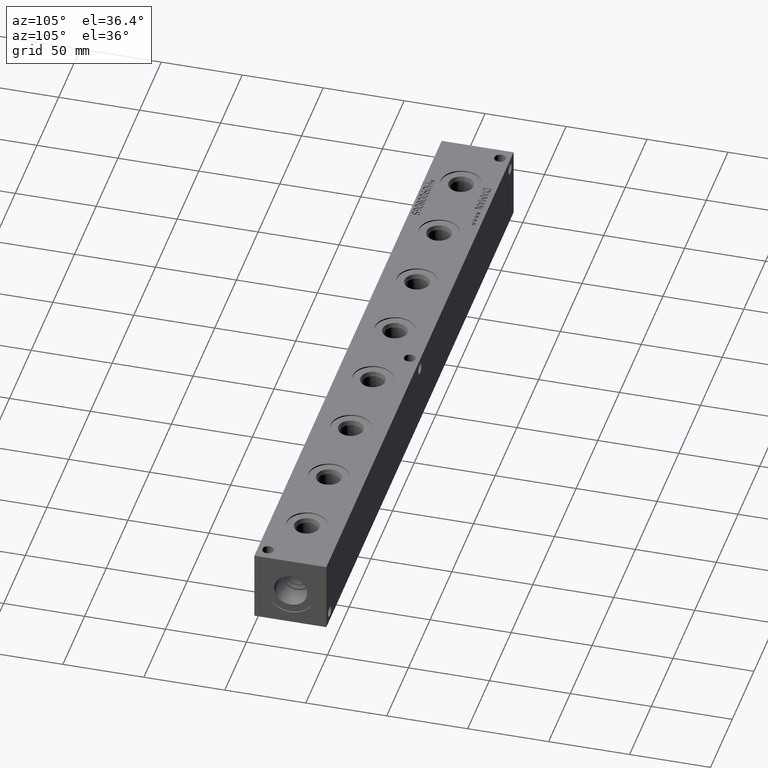
[diagram: clean part render]
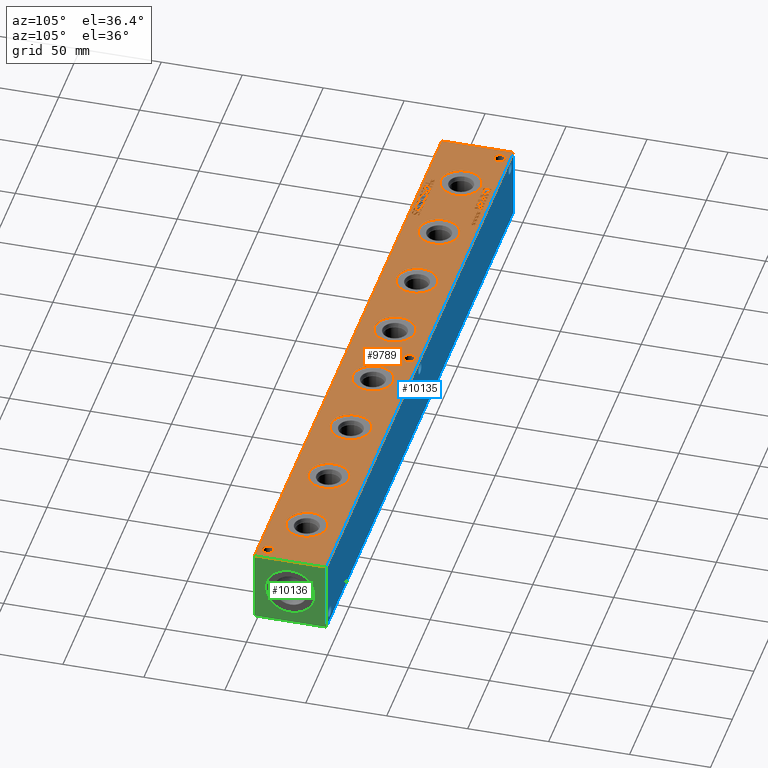
[diagram: same view with three faces highlighted in distinct colors, each labeled with its STEP entity id]
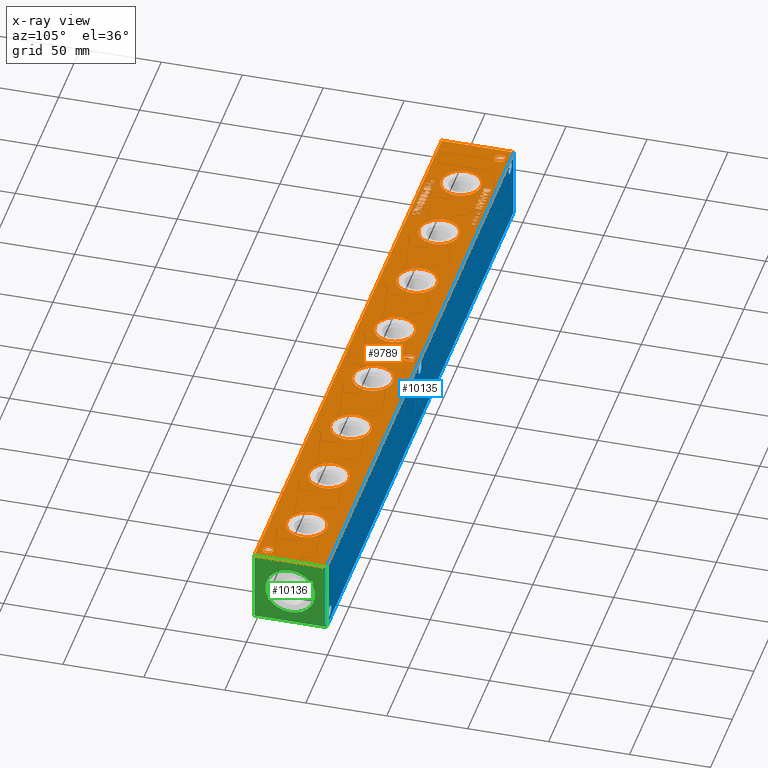
[diagram: x-ray of the same camera — body ghosted, the three highlighted faces saturated]
A machine part, auxiliary view with three faces highlighted in distinct colors.
The next image is the same camera in x-ray (body ghosted, the three faces saturated) — at least one of them is partly hidden behind the body in this view.
Their STEP definitions:

[orange] entity #9789 — the highlighted planar face has unit normal (0, 0, 1).
#184=CIRCLE('',#10205,12.5095);
#185=CIRCLE('',#10206,12.5095);
#186=CIRCLE('',#10207,12.5095);
#187=CIRCLE('',#10208,12.5095);
#188=CIRCLE('',#10209,12.5095);
#189=CIRCLE('',#10210,12.5095);
#190=CIRCLE('',#10211,12.5095);
#191=CIRCLE('',#10212,12.5095);
#192=CIRCLE('',#10213,12.5095);
#193=CIRCLE('',#10214,12.5095);
#194=CIRCLE('',#10215,12.5095);
#195=CIRCLE('',#10216,12.5095);
#196=CIRCLE('',#10217,12.5095);
#197=CIRCLE('',#10218,12.5095);
#198=CIRCLE('',#10219,12.5095);
#199=CIRCLE('',#10220,12.5095);
#200=CIRCLE('',#10221,3.5687);
#201=CIRCLE('',#10222,3.5687);
#202=CIRCLE('',#10223,3.5687);
#203=CIRCLE('',#10224,3.5687);
#204=CIRCLE('',#10225,3.5687);
#205=CIRCLE('',#10226,3.5687);
#530=FACE_BOUND('',#1555,.T.);
#531=FACE_BOUND('',#1556,.T.);
#532=FACE_BOUND('',#1557,.T.);
#533=FACE_BOUND('',#1558,.T.);
#534=FACE_BOUND('',#1559,.T.);
#535=FACE_BOUND('',#1560,.T.);
#536=FACE_BOUND('',#1561,.T.);
#537=FACE_BOUND('',#1562,.T.);
#538=FACE_BOUND('',#1563,.T.);
#539=FACE_BOUND('',#1564,.T.);
#540=FACE_BOUND('',#1565,.T.);
#541=FACE_BOUND('',#1566,.T.);
#542=FACE_BOUND('',#1567,.T.);
#543=FACE_BOUND('',#1568,.T.);
#544=FACE_BOUND('',#1569,.T.);
#545=FACE_BOUND('',#1570,.T.);
#546=FACE_BOUND('',#1571,.T.);
#547=FACE_BOUND('',#1572,.T.);
#548=FACE_BOUND('',#1573,.T.);
#549=FACE_BOUND('',#1574,.T.);
#550=FACE_BOUND('',#1575,.T.);
#551=FACE_BOUND('',#1576,.T.);
#552=FACE_BOUND('',#1577,.T.);
#553=FACE_BOUND('',#1578,.T.);
#554=FACE_BOUND('',#1579,.T.);
#555=FACE_BOUND('',#1580,.T.);
#556=FACE_BOUND('',#1581,.T.);
#557=FACE_BOUND('',#1582,.T.);
#558=FACE_BOUND('',#1583,.T.);
#559=FACE_BOUND('',#1584,.T.);
#668=PLANE('',#10204);
#1024=FACE_OUTER_BOUND('',#1554,.T.);
#1554=EDGE_LOOP('',(#7094,#7095,#7096,#7097));
#1555=EDGE_LOOP('',(#7098,#7099,#7100,#7101,#7102,#7103,#7104,#7105,#7106,
#7107,#7108));
#1556=EDGE_LOOP('',(#7109,#7110,#7111,#7112));
#1557=EDGE_LOOP('',(#7113,#7114,#7115,#7116));
#1558=EDGE_LOOP('',(#7117,#7118,#7119,#7120,#7121,#7122,#7123,#7124,#7125,
#7126,#7127,#7128,#7129,#7130));
#1559=EDGE_LOOP('',(#7131,#7132,#7133,#7134));
#1560=EDGE_LOOP('',(#7135,#7136,#7137,#7138,#7139,#7140,#7141,#7142,#7143,
#7144,#7145,#7146,#7147,#7148,#7149,#7150,#7151,#7152));
#1561=EDGE_LOOP('',(#7153,#7154,#7155,#7156,#7157,#7158,#7159,#7160,#7161,
#7162,#7163,#7164));
#1562=EDGE_LOOP('',(#7165,#7166,#7167,#7168));
#1563=EDGE_LOOP('',(#7169,#7170,#7171,#7172,#7173,#7174,#7175,#7176,#7177,
#7178,#7179,#7180,#7181,#7182));
#1564=EDGE_LOOP('',(#7183,#7184,#7185,#7186,#7187,#7188,#7189,#7190,#7191,
#7192,#7193,#7194,#7195,#7196,#7197,#7198,#7199,#7200,#7201,#7202));
#1565=EDGE_LOOP('',(#7203,#7204));
#1566=EDGE_LOOP('',(#7205,#7206));
#1567=EDGE_LOOP('',(#7207,#7208));
#1568=EDGE_LOOP('',(#7209,#7210));
#1569=EDGE_LOOP('',(#7211,#7212));
#1570=EDGE_LOOP('',(#7213,#7214));
#1571=EDGE_LOOP('',(#7215,#7216));
#1572=EDGE_LOOP('',(#7217,#7218));
#1573=EDGE_LOOP('',(#7219,#7220));
#1574=EDGE_LOOP('',(#7221,#7222));
#1575=EDGE_LOOP('',(#7223,#7224));
#1576=EDGE_LOOP('',(#7225,#7226,#7227,#7228,#7229,#7230,#7231,#7232,#7233,
#7234,#7235,#7236,#7237,#7238,#7239,#7240,#7241,#7242));
#1577=EDGE_LOOP('',(#7243,#7244,#7245,#7246,#7247,#7248,#7249,#7250,#7251,
#7252,#7253,#7254,#7255,#7256,#7257,#7258,#7259,#7260));
#1578=EDGE_LOOP('',(#7261,#7262,#7263,#7264,#7265,#7266,#7267,#7268,#7269,
#7270));
#1579=EDGE_LOOP('',(#7271,#7272,#7273,#7274,#7275,#7276,#7277,#7278));
#1580=EDGE_LOOP('',(#7279,#7280,#7281,#7282,#7283,#7284,#7285));
#1581=EDGE_LOOP('',(#7286,#7287,#7288,#7289,#7290,#7291,#7292,#7293));
#1582=EDGE_LOOP('',(#7294,#7295,#7296,#7297,#7298,#7299,#7300,#7301,#7302,
#7303,#7304,#7305,#7306));
#1583=EDGE_LOOP('',(#7307,#7308,#7309,#7310,#7311,#7312,#7313,#7314,#7315,
#7316,#7317,#7318,#7319,#7320,#7321,#7322,#7323,#7324));
#1584=EDGE_LOOP('',(#7325,#7326,#7327,#7328,#7329,#7330,#7331,#7332,#7333,
#7334,#7335,#7336,#7337,#7338,#7339,#7340,#7341,#7342));
#2006=LINE('',#13391,#2778);
#2013=LINE('',#13473,#2785);
#2055=LINE('',#14223,#2827);
#2058=LINE('',#14229,#2830);
#2079=LINE('',#14596,#2851);
#2083=LINE('',#14604,#2855);
#2086=LINE('',#14610,#2858);
#2089=LINE('',#14616,#2861);
#2092=LINE('',#14622,#2864);
#2095=LINE('',#14628,#2867);
#2098=LINE('',#14634,#2870);
#2101=LINE('',#14640,#2873);
#2104=LINE('',#14646,#2876);
#2107=LINE('',#14652,#2879);
#2110=LINE('',#14658,#2882);
#2113=LINE('',#14664,#2885);
#2116=LINE('',#14670,#2888);
#2119=LINE('',#14676,#2891);
#2122=LINE('',#14682,#2894);
#2125=LINE('',#14688,#2897);
#2128=LINE('',#14694,#2900);
#2131=LINE('',#14699,#2903);
#2133=LINE('',#14705,#2905);
#2137=LINE('',#14713,#2909);
#2140=LINE('',#14719,#2912);
#2143=LINE('',#14725,#2915);
#2146=LINE('',#14731,#2918);
#2149=LINE('',#14737,#2921);
#2152=LINE('',#14743,#2924);
#2155=LINE('',#14749,#2927);
#2158=LINE('',#14755,#2930);
#2161=LINE('',#14761,#2933);
#2164=LINE('',#14767,#2936);
#2167=LINE('',#14772,#2939);
#2194=LINE('',#15237,#2966);
#2197=LINE('',#15243,#2969);
#2214=LINE('',#15516,#2986);
#2217=LINE('',#15522,#2989);
#2228=LINE('',#15680,#3000);
#2231=LINE('',#15686,#3003);
#2234=LINE('',#15710,#3006);
#2235=LINE('',#15712,#3007);
#2236=LINE('',#15714,#3008);
#2237=LINE('',#15715,#3009);
#2238=LINE('',#15762,#3010);
#2239=LINE('',#15764,#3011);
#2240=LINE('',#15766,#3012);
#2241=LINE('',#15768,#3013);
#2242=LINE('',#15770,#3014);
#2243=LINE('',#15772,#3015);
#2244=LINE('',#15774,#3016);
#2245=LINE('',#15776,#3017);
#2246=LINE('',#15778,#3018);
#2247=LINE('',#15780,#3019);
#2248=LINE('',#15782,#3020);
#2249=LINE('',#15784,#3021);
#2250=LINE('',#15786,#3022);
#2251=LINE('',#15788,#3023);
#2252=LINE('',#15790,#3024);
#2253=LINE('',#15792,#3025);
#2254=LINE('',#15794,#3026);
#2255=LINE('',#15795,#3027);
#2256=LINE('',#15798,#3028);
#2257=LINE('',#15800,#3029);
#2258=LINE('',#15802,#3030);
#2259=LINE('',#15804,#3031);
#2260=LINE('',#15806,#3032);
#2261=LINE('',#15808,#3033);
#2262=LINE('',#15810,#3034);
#2263=LINE('',#15812,#3035);
#2264=LINE('',#15814,#3036);
#2265=LINE('',#15816,#3037);
#2266=LINE('',#15818,#3038);
#2267=LINE('',#15820,#3039);
#2268=LINE('',#15822,#3040);
#2269=LINE('',#15824,#3041);
#2270=LINE('',#15826,#3042);
#2271=LINE('',#15828,#3043);
#2272=LINE('',#15830,#3044);
#2273=LINE('',#15831,#3045);
#2274=LINE('',#15834,#3046);
#2275=LINE('',#15836,#3047);
#2276=LINE('',#15838,#3048);
#2277=LINE('',#15840,#3049);
#2278=LINE('',#15842,#3050);
#2279=LINE('',#15844,#3051);
#2280=LINE('',#15846,#3052);
#2281=LINE('',#15848,#3053);
#2282=LINE('',#15850,#3054);
#2283=LINE('',#15851,#3055);
#2284=LINE('',#15854,#3056);
#2285=LINE('',#15856,#3057);
#2286=LINE('',#15858,#3058);
#2287=LINE('',#15860,#3059);
#2288=LINE('',#15862,#3060);
#2289=LINE('',#15864,#3061);
#2290=LINE('',#15866,#3062);
#2291=LINE('',#15867,#3063);
#2292=LINE('',#15885,#3064);
#2293=LINE('',#15887,#3065);
#2294=LINE('',#15889,#3066);
#2295=LINE('',#15896,#3067);
#2296=LINE('',#15898,#3068);
#2297=LINE('',#15900,#3069);
#2298=LINE('',#15902,#3070);
#2299=LINE('',#15904,#3071);
#2300=LINE('',#15906,#3072);
#2301=LINE('',#15908,#3073);
#2302=LINE('',#15909,#3074);
#2303=LINE('',#15912,#3075);
#2304=LINE('',#15914,#3076);
#2305=LINE('',#15916,#3077);
#2306=LINE('',#15918,#3078);
#2307=LINE('',#15920,#3079);
#2308=LINE('',#15922,#3080);
#2309=LINE('',#15924,#3081);
#2310=LINE('',#15926,#3082);
#2311=LINE('',#15928,#3083);
#2312=LINE('',#15930,#3084);
#2313=LINE('',#15932,#3085);
#2314=LINE('',#15934,#3086);
#2315=LINE('',#15935,#3087);
#2316=LINE('',#15938,#3088);
#2317=LINE('',#15940,#3089);
#2318=LINE('',#15942,#3090);
#2319=LINE('',#15944,#3091);
#2320=LINE('',#15946,#3092);
#2321=LINE('',#15948,#3093);
#2322=LINE('',#15950,#3094);
#2323=LINE('',#15952,#3095);
#2324=LINE('',#15954,#3096);
#2325=LINE('',#15956,#3097);
#2326=LINE('',#15958,#3098);
#2327=LINE('',#15960,#3099);
#2328=LINE('',#15962,#3100);
#2329=LINE('',#15964,#3101);
#2330=LINE('',#15966,#3102);
#2331=LINE('',#15968,#3103);
#2332=LINE('',#15970,#3104);
#2333=LINE('',#15971,#3105);
#2334=LINE('',#15974,#3106);
#2335=LINE('',#15976,#3107);
#2336=LINE('',#15978,#3108);
#2337=LINE('',#15980,#3109);
#2338=LINE('',#15982,#3110);
#2339=LINE('',#15984,#3111);
#2340=LINE('',#15986,#3112);
#2341=LINE('',#15988,#3113);
#2342=LINE('',#15990,#3114);
#2343=LINE('',#15992,#3115);
#2344=LINE('',#15994,#3116);
#2345=LINE('',#15996,#3117);
#2346=LINE('',#15998,#3118);
#2347=LINE('',#16000,#3119);
#2348=LINE('',#16002,#3120);
#2349=LINE('',#16004,#3121);
#2350=LINE('',#16006,#3122);
#2351=LINE('',#16007,#3123);
#2778=VECTOR('',#10914,10.);
#2785=VECTOR('',#10923,10.);
#2827=VECTOR('',#10973,10.);
#2830=VECTOR('',#10978,10.);
#2851=VECTOR('',#11005,10.);
#2855=VECTOR('',#11011,10.);
#2858=VECTOR('',#11016,10.);
#2861=VECTOR('',#11021,10.);
#2864=VECTOR('',#11026,10.);
#2867=VECTOR('',#11031,10.);
#2870=VECTOR('',#11036,10.);
#2873=VECTOR('',#11041,10.);
#2876=VECTOR('',#11046,10.);
#2879=VECTOR('',#11051,10.);
#2882=VECTOR('',#11056,10.);
#2885=VECTOR('',#11061,10.);
#2888=VECTOR('',#11066,10.);
#2891=VECTOR('',#11071,10.);
#2894=VECTOR('',#11076,10.);
#2897=VECTOR('',#11081,10.);
#2900=VECTOR('',#11086,10.);
#2903=VECTOR('',#11091,10.);
#2905=VECTOR('',#11097,10.);
#2909=VECTOR('',#11103,10.);
#2912=VECTOR('',#11108,10.);
#2915=VECTOR('',#11113,10.);
#2918=VECTOR('',#11118,10.);
#2921=VECTOR('',#11123,10.);
#2924=VECTOR('',#11128,10.);
#2927=VECTOR('',#11133,10.);
#2930=VECTOR('',#11138,10.);
#2933=VECTOR('',#11143,10.);
#2936=VECTOR('',#11148,10.);
#2939=VECTOR('',#11153,10.);
#2966=VECTOR('',#11186,10.);
#2969=VECTOR('',#11191,10.);
#2986=VECTOR('',#11212,10.);
#2989=VECTOR('',#11217,10.);
#3000=VECTOR('',#11230,10.);
#3003=VECTOR('',#11235,10.);
#3006=VECTOR('',#11242,10.);
#3007=VECTOR('',#11243,10.);
#3008=VECTOR('',#11244,10.);
#3009=VECTOR('',#11245,10.);
#3010=VECTOR('',#11290,10.);
#3011=VECTOR('',#11291,10.);
#3012=VECTOR('',#11292,10.);
#3013=VECTOR('',#11293,10.);
#3014=VECTOR('',#11294,10.);
#3015=VECTOR('',#11295,10.);
#3016=VECTOR('',#11296,10.);
#3017=VECTOR('',#11297,10.);
#3018=VECTOR('',#11298,10.);
#3019=VECTOR('',#11299,10.);
#3020=VECTOR('',#11300,10.);
#3021=VECTOR('',#11301,10.);
#3022=VECTOR('',#11302,10.);
#3023=VECTOR('',#11303,10.);
#3024=VECTOR('',#11304,10.);
#3025=VECTOR('',#11305,10.);
#3026=VECTOR('',#11306,10.);
#3027=VECTOR('',#11307,10.);
#3028=VECTOR('',#11308,10.);
#3029=VECTOR('',#11309,10.);
#3030=VECTOR('',#11310,10.);
#3031=VECTOR('',#11311,10.);
#3032=VECTOR('',#11312,10.);
#3033=VECTOR('',#11313,10.);
#3034=VECTOR('',#11314,10.);
#3035=VECTOR('',#11315,10.);
#3036=VECTOR('',#11316,10.);
#3037=VECTOR('',#11317,10.);
#3038=VECTOR('',#11318,10.);
#3039=VECTOR('',#11319,10.);
#3040=VECTOR('',#11320,10.);
#3041=VECTOR('',#11321,10.);
#3042=VECTOR('',#11322,10.);
#3043=VECTOR('',#11323,10.);
#3044=VECTOR('',#11324,10.);
#3045=VECTOR('',#11325,10.);
#3046=VECTOR('',#11326,10.);
#3047=VECTOR('',#11327,10.);
#3048=VECTOR('',#11328,10.);
#3049=VECTOR('',#11329,10.);
#3050=VECTOR('',#11330,10.);
#3051=VECTOR('',#11331,10.);
#3052=VECTOR('',#11332,10.);
#3053=VECTOR('',#11333,10.);
#3054=VECTOR('',#11334,10.);
#3055=VECTOR('',#11335,10.);
#3056=VECTOR('',#11336,10.);
#3057=VECTOR('',#11337,10.);
#3058=VECTOR('',#11338,10.);
#3059=VECTOR('',#11339,10.);
#3060=VECTOR('',#11340,10.);
#3061=VECTOR('',#11341,10.);
#3062=VECTOR('',#11342,10.);
#3063=VECTOR('',#11343,10.);
#3064=VECTOR('',#11344,10.);
#3065=VECTOR('',#11345,10.);
#3066=VECTOR('',#11346,10.);
#3067=VECTOR('',#11347,10.);
#3068=VECTOR('',#11348,10.);
#3069=VECTOR('',#11349,10.);
#3070=VECTOR('',#11350,10.);
#3071=VECTOR('',#11351,10.);
#3072=VECTOR('',#11352,10.);
#3073=VECTOR('',#11353,10.);
#3074=VECTOR('',#11354,10.);
#3075=VECTOR('',#11355,10.);
#3076=VECTOR('',#11356,10.);
#3077=VECTOR('',#11357,10.);
#3078=VECTOR('',#11358,10.);
#3079=VECTOR('',#11359,10.);
#3080=VECTOR('',#11360,10.);
#3081=VECTOR('',#11361,10.);
#3082=VECTOR('',#11362,10.);
#3083=VECTOR('',#11363,10.);
#3084=VECTOR('',#11364,10.);
#3085=VECTOR('',#11365,10.);
#3086=VECTOR('',#11366,10.);
#3087=VECTOR('',#11367,10.);
#3088=VECTOR('',#11368,10.);
#3089=VECTOR('',#11369,10.);
#3090=VECTOR('',#11370,10.);
#3091=VECTOR('',#11371,10.);
#3092=VECTOR('',#11372,10.);
#3093=VECTOR('',#11373,10.);
#3094=VECTOR('',#11374,10.);
#3095=VECTOR('',#11375,10.);
#3096=VECTOR('',#11376,10.);
#3097=VECTOR('',#11377,10.);
#3098=VECTOR('',#11378,10.);
#3099=VECTOR('',#11379,10.);
#3100=VECTOR('',#11380,10.);
#3101=VECTOR('',#11381,10.);
#3102=VECTOR('',#11382,10.);
#3103=VECTOR('',#11383,10.);
#3104=VECTOR('',#11384,10.);
#3105=VECTOR('',#11385,10.);
#3106=VECTOR('',#11386,10.);
#3107=VECTOR('',#11387,10.);
#3108=VECTOR('',#11388,10.);
#3109=VECTOR('',#11389,10.);
#3110=VECTOR('',#11390,10.);
#3111=VECTOR('',#11391,10.);
#3112=VECTOR('',#11392,10.);
#3113=VECTOR('',#11393,10.);
#3114=VECTOR('',#11394,10.);
#3115=VECTOR('',#11395,10.);
#3116=VECTOR('',#11396,10.);
#3117=VECTOR('',#11397,10.);
#3118=VECTOR('',#11398,10.);
#3119=VECTOR('',#11399,10.);
#3120=VECTOR('',#11400,10.);
#3121=VECTOR('',#11401,10.);
#3122=VECTOR('',#11402,10.);
#3123=VECTOR('',#11403,10.);
#3557=B_SPLINE_CURVE_WITH_KNOTS('',2,(#13358,#13359,#13360,#13361),
 .UNSPECIFIED.,.F.,.F.,(3,1,3),(0.,1.,2.),.UNSPECIFIED.);
#3559=B_SPLINE_CURVE_WITH_KNOTS('',2,(#13379,#13380,#13381,#13382),
 .UNSPECIFIED.,.F.,.F.,(3,1,3),(0.,1.,2.),.UNSPECIFIED.);
#3561=B_SPLINE_CURVE_WITH_KNOTS('',2,(#13404,#13405,#13406,#13407),
 .UNSPECIFIED.,.F.,.F.,(3,1,3),(0.,1.,2.),.UNSPECIFIED.);
#3563=B_SPLINE_CURVE_WITH_KNOTS('',2,(#13423,#13424,#13425,#13426),
 .UNSPECIFIED.,.F.,.F.,(3,1,3),(0.,1.,2.),.UNSPECIFIED.);
#3565=B_SPLINE_CURVE_WITH_KNOTS('',2,(#13442,#13443,#13444,#13445),
 .UNSPECIFIED.,.F.,.F.,(3,1,3),(0.,1.,2.),.UNSPECIFIED.);
#3567=B_SPLINE_CURVE_WITH_KNOTS('',2,(#13461,#13462,#13463,#13464),
 .UNSPECIFIED.,.F.,.F.,(3,1,3),(0.,1.,2.),.UNSPECIFIED.);
#3569=B_SPLINE_CURVE_WITH_KNOTS('',2,(#13486,#13487,#13488,#13489),
 .UNSPECIFIED.,.F.,.F.,(3,1,3),(0.,1.,2.),.UNSPECIFIED.);
#3571=B_SPLINE_CURVE_WITH_KNOTS('',2,(#13505,#13506,#13507,#13508),
 .UNSPECIFIED.,.F.,.F.,(3,1,3),(0.,1.,2.),.UNSPECIFIED.);
#3573=B_SPLINE_CURVE_WITH_KNOTS('',2,(#13523,#13524,#13525,#13526),
 .UNSPECIFIED.,.F.,.F.,(3,1,3),(0.,1.,2.),.UNSPECIFIED.);
#3591=B_SPLINE_CURVE_WITH_KNOTS('',2,(#13694,#13695,#13696,#13697),
 .UNSPECIFIED.,.F.,.F.,(3,1,3),(0.,1.,2.),.UNSPECIFIED.);
#3593=B_SPLINE_CURVE_WITH_KNOTS('',2,(#13715,#13716,#13717,#13718),
 .UNSPECIFIED.,.F.,.F.,(3,1,3),(0.,1.,2.),.UNSPECIFIED.);
#3595=B_SPLINE_CURVE_WITH_KNOTS('',2,(#13734,#13735,#13736,#13737),
 .UNSPECIFIED.,.F.,.F.,(3,1,3),(0.,1.,2.),.UNSPECIFIED.);
#3597=B_SPLINE_CURVE_WITH_KNOTS('',2,(#13752,#13753,#13754,#13755),
 .UNSPECIFIED.,.F.,.F.,(3,1,3),(0.,1.,2.),.UNSPECIFIED.);
#3615=B_SPLINE_CURVE_WITH_KNOTS('',2,(#13923,#13924,#13925,#13926),
 .UNSPECIFIED.,.F.,.F.,(3,1,3),(0.,1.,2.),.UNSPECIFIED.);
#3617=B_SPLINE_CURVE_WITH_KNOTS('',2,(#13944,#13945,#13946,#13947),
 .UNSPECIFIED.,.F.,.F.,(3,1,3),(0.,1.,2.),.UNSPECIFIED.);
#3619=B_SPLINE_CURVE_WITH_KNOTS('',2,(#13963,#13964,#13965,#13966),
 .UNSPECIFIED.,.F.,.F.,(3,1,3),(0.,1.,2.),.UNSPECIFIED.);
#3621=B_SPLINE_CURVE_WITH_KNOTS('',2,(#13981,#13982,#13983,#13984),
 .UNSPECIFIED.,.F.,.F.,(3,1,3),(0.,1.,2.),.UNSPECIFIED.);
#3637=B_SPLINE_CURVE_WITH_KNOTS('',2,(#14133,#14134,#14135,#14136),
 .UNSPECIFIED.,.F.,.F.,(3,1,3),(0.,1.,2.),.UNSPECIFIED.);
#3639=B_SPLINE_CURVE_WITH_KNOTS('',2,(#14154,#14155,#14156,#14157),
 .UNSPECIFIED.,.F.,.F.,(3,1,3),(0.,1.,2.),.UNSPECIFIED.);
#3641=B_SPLINE_CURVE_WITH_KNOTS('',2,(#14173,#14174,#14175,#14176),
 .UNSPECIFIED.,.F.,.F.,(3,1,3),(0.,1.,2.),.UNSPECIFIED.);
#3643=B_SPLINE_CURVE_WITH_KNOTS('',2,(#14192,#14193,#14194,#14195),
 .UNSPECIFIED.,.F.,.F.,(3,1,3),(0.,1.,2.),.UNSPECIFIED.);
#3645=B_SPLINE_CURVE_WITH_KNOTS('',2,(#14211,#14212,#14213,#14214),
 .UNSPECIFIED.,.F.,.F.,(3,1,3),(0.,1.,2.),.UNSPECIFIED.);
#3647=B_SPLINE_CURVE_WITH_KNOTS('',2,(#14242,#14243,#14244,#14245),
 .UNSPECIFIED.,.F.,.F.,(3,1,3),(0.,1.,2.),.UNSPECIFIED.);
#3649=B_SPLINE_CURVE_WITH_KNOTS('',2,(#14261,#14262,#14263,#14264),
 .UNSPECIFIED.,.F.,.F.,(3,1,3),(0.,1.,2.),.UNSPECIFIED.);
#3651=B_SPLINE_CURVE_WITH_KNOTS('',2,(#14280,#14281,#14282,#14283),
 .UNSPECIFIED.,.F.,.F.,(3,1,3),(0.,1.,2.),.UNSPECIFIED.);
#3653=B_SPLINE_CURVE_WITH_KNOTS('',2,(#14299,#14300,#14301,#14302),
 .UNSPECIFIED.,.F.,.F.,(3,1,3),(0.,1.,2.),.UNSPECIFIED.);
#3655=B_SPLINE_CURVE_WITH_KNOTS('',2,(#14318,#14319,#14320,#14321),
 .UNSPECIFIED.,.F.,.F.,(3,1,3),(0.,1.,2.),.UNSPECIFIED.);
#3657=B_SPLINE_CURVE_WITH_KNOTS('',2,(#14337,#14338,#14339,#14340),
 .UNSPECIFIED.,.F.,.F.,(3,1,3),(0.,1.,2.),.UNSPECIFIED.);
#3659=B_SPLINE_CURVE_WITH_KNOTS('',2,(#14355,#14356,#14357,#14358),
 .UNSPECIFIED.,.F.,.F.,(3,1,3),(0.,1.,2.),.UNSPECIFIED.);
#3677=B_SPLINE_CURVE_WITH_KNOTS('',2,(#14526,#14527,#14528,#14529),
 .UNSPECIFIED.,.F.,.F.,(3,1,3),(0.,1.,2.),.UNSPECIFIED.);
#3679=B_SPLINE_CURVE_WITH_KNOTS('',2,(#14547,#14548,#14549,#14550),
 .UNSPECIFIED.,.F.,.F.,(3,1,3),(0.,1.,2.),.UNSPECIFIED.);
#3681=B_SPLINE_CURVE_WITH_KNOTS('',2,(#14566,#14567,#14568,#14569),
 .UNSPECIFIED.,.F.,.F.,(3,1,3),(0.,1.,2.),.UNSPECIFIED.);
#3683=B_SPLINE_CURVE_WITH_KNOTS('',2,(#14584,#14585,#14586,#14587),
 .UNSPECIFIED.,.F.,.F.,(3,1,3),(0.,1.,2.),.UNSPECIFIED.);
#3701=B_SPLINE_CURVE_WITH_KNOTS('',2,(#14937,#14938,#14939,#14940),
 .UNSPECIFIED.,.F.,.F.,(3,1,3),(0.,1.,2.),.UNSPECIFIED.);
#3703=B_SPLINE_CURVE_WITH_KNOTS('',2,(#14958,#14959,#14960,#14961),
 .UNSPECIFIED.,.F.,.F.,(3,1,3),(0.,1.,2.),.UNSPECIFIED.);
#3705=B_SPLINE_CURVE_WITH_KNOTS('',2,(#14977,#14978,#14979,#14980),
 .UNSPECIFIED.,.F.,.F.,(3,1,3),(0.,1.,2.),.UNSPECIFIED.);
#3707=B_SPLINE_CURVE_WITH_KNOTS('',2,(#14995,#14996,#14997,#14998),
 .UNSPECIFIED.,.F.,.F.,(3,1,3),(0.,1.,2.),.UNSPECIFIED.);
#3723=B_SPLINE_CURVE_WITH_KNOTS('',2,(#15147,#15148,#15149,#15150),
 .UNSPECIFIED.,.F.,.F.,(3,1,3),(0.,1.,2.),.UNSPECIFIED.);
#3725=B_SPLINE_CURVE_WITH_KNOTS('',2,(#15168,#15169,#15170,#15171),
 .UNSPECIFIED.,.F.,.F.,(3,1,3),(0.,1.,2.),.UNSPECIFIED.);
#3727=B_SPLINE_CURVE_WITH_KNOTS('',2,(#15187,#15188,#15189,#15190),
 .UNSPECIFIED.,.F.,.F.,(3,1,3),(0.,1.,2.),.UNSPECIFIED.);
#3729=B_SPLINE_CURVE_WITH_KNOTS('',2,(#15206,#15207,#15208,#15209),
 .UNSPECIFIED.,.F.,.F.,(3,1,3),(0.,1.,2.),.UNSPECIFIED.);
#3731=B_SPLINE_CURVE_WITH_KNOTS('',2,(#15225,#15226,#15227,#15228),
 .UNSPECIFIED.,.F.,.F.,(3,1,3),(0.,1.,2.),.UNSPECIFIED.);
#3733=B_SPLINE_CURVE_WITH_KNOTS('',2,(#15256,#15257,#15258,#15259),
 .UNSPECIFIED.,.F.,.F.,(3,1,3),(0.,1.,2.),.UNSPECIFIED.);
#3735=B_SPLINE_CURVE_WITH_KNOTS('',2,(#15275,#15276,#15277,#15278),
 .UNSPECIFIED.,.F.,.F.,(3,1,3),(0.,1.,2.),.UNSPECIFIED.);
#3737=B_SPLINE_CURVE_WITH_KNOTS('',2,(#15294,#15295,#15296,#15297),
 .UNSPECIFIED.,.F.,.F.,(3,1,3),(0.,1.,2.),.UNSPECIFIED.);
#3739=B_SPLINE_CURVE_WITH_KNOTS('',2,(#15313,#15314,#15315,#15316),
 .UNSPECIFIED.,.F.,.F.,(3,1,3),(0.,1.,2.),.UNSPECIFIED.);
#3741=B_SPLINE_CURVE_WITH_KNOTS('',2,(#15332,#15333,#15334,#15335),
 .UNSPECIFIED.,.F.,.F.,(3,1,3),(0.,1.,2.),.UNSPECIFIED.);
#3743=B_SPLINE_CURVE_WITH_KNOTS('',2,(#15351,#15352,#15353,#15354),
 .UNSPECIFIED.,.F.,.F.,(3,1,3),(0.,1.,2.),.UNSPECIFIED.);
#3745=B_SPLINE_CURVE_WITH_KNOTS('',2,(#15369,#15370,#15371,#15372),
 .UNSPECIFIED.,.F.,.F.,(3,1,3),(0.,1.,2.),.UNSPECIFIED.);
#3747=B_SPLINE_CURVE_WITH_KNOTS('',2,(#15388,#15389,#15390,#15391),
 .UNSPECIFIED.,.F.,.F.,(3,1,3),(0.,1.,2.),.UNSPECIFIED.);
#3749=B_SPLINE_CURVE_WITH_KNOTS('',2,(#15409,#15410,#15411,#15412),
 .UNSPECIFIED.,.F.,.F.,(3,1,3),(0.,1.,2.),.UNSPECIFIED.);
#3751=B_SPLINE_CURVE_WITH_KNOTS('',2,(#15428,#15429,#15430,#15431),
 .UNSPECIFIED.,.F.,.F.,(3,1,3),(0.,1.,2.),.UNSPECIFIED.);
#3753=B_SPLINE_CURVE_WITH_KNOTS('',2,(#15447,#15448,#15449,#15450),
 .UNSPECIFIED.,.F.,.F.,(3,1,3),(0.,1.,2.),.UNSPECIFIED.);
#3755=B_SPLINE_CURVE_WITH_KNOTS('',2,(#15466,#15467,#15468,#15469),
 .UNSPECIFIED.,.F.,.F.,(3,1,3),(0.,1.,2.),.UNSPECIFIED.);
#3757=B_SPLINE_CURVE_WITH_KNOTS('',2,(#15485,#15486,#15487,#15488),
 .UNSPECIFIED.,.F.,.F.,(3,1,3),(0.,1.,2.),.UNSPECIFIED.);
#3759=B_SPLINE_CURVE_WITH_KNOTS('',2,(#15504,#15505,#15506,#15507),
 .UNSPECIFIED.,.F.,.F.,(3,1,3),(0.,1.,2.),.UNSPECIFIED.);
#3761=B_SPLINE_CURVE_WITH_KNOTS('',2,(#15535,#15536,#15537,#15538),
 .UNSPECIFIED.,.F.,.F.,(3,1,3),(0.,1.,2.),.UNSPECIFIED.);
#3763=B_SPLINE_CURVE_WITH_KNOTS('',2,(#15554,#15555,#15556,#15557),
 .UNSPECIFIED.,.F.,.F.,(3,1,3),(0.,1.,2.),.UNSPECIFIED.);
#3765=B_SPLINE_CURVE_WITH_KNOTS('',2,(#15573,#15574,#15575,#15576),
 .UNSPECIFIED.,.F.,.F.,(3,1,3),(0.,1.,2.),.UNSPECIFIED.);
#3767=B_SPLINE_CURVE_WITH_KNOTS('',2,(#15592,#15593,#15594,#15595),
 .UNSPECIFIED.,.F.,.F.,(3,1,3),(0.,1.,2.),.UNSPECIFIED.);
#3769=B_SPLINE_CURVE_WITH_KNOTS('',2,(#15611,#15612,#15613,#15614),
 .UNSPECIFIED.,.F.,.F.,(3,1,3),(0.,1.,2.),.UNSPECIFIED.);
#3771=B_SPLINE_CURVE_WITH_KNOTS('',2,(#15630,#15631,#15632,#15633),
 .UNSPECIFIED.,.F.,.F.,(3,1,3),(0.,1.,2.),.UNSPECIFIED.);
#3773=B_SPLINE_CURVE_WITH_KNOTS('',2,(#15649,#15650,#15651,#15652),
 .UNSPECIFIED.,.F.,.F.,(3,1,3),(0.,1.,2.),.UNSPECIFIED.);
#3775=B_SPLINE_CURVE_WITH_KNOTS('',2,(#15668,#15669,#15670,#15671),
 .UNSPECIFIED.,.F.,.F.,(3,1,3),(0.,1.,2.),.UNSPECIFIED.);
#3777=B_SPLINE_CURVE_WITH_KNOTS('',2,(#15698,#15699,#15700,#15701),
 .UNSPECIFIED.,.F.,.F.,(3,1,3),(0.,1.,2.),.UNSPECIFIED.);
#3779=B_SPLINE_CURVE_WITH_KNOTS('',2,(#15870,#15871,#15872,#15873),
 .UNSPECIFIED.,.F.,.F.,(3,1,3),(0.,1.,2.),.UNSPECIFIED.);
#3780=B_SPLINE_CURVE_WITH_KNOTS('',2,(#15875,#15876,#15877,#15878),
 .UNSPECIFIED.,.F.,.F.,(3,1,3),(0.,1.,2.),.UNSPECIFIED.);
#3781=B_SPLINE_CURVE_WITH_KNOTS('',2,(#15880,#15881,#15882,#15883),
 .UNSPECIFIED.,.F.,.F.,(3,1,3),(0.,1.,2.),.UNSPECIFIED.);
#3782=B_SPLINE_CURVE_WITH_KNOTS('',2,(#15890,#15891,#15892,#15893),
 .UNSPECIFIED.,.F.,.F.,(3,1,3),(0.,1.,2.),.UNSPECIFIED.);
#3879=VERTEX_POINT('',#13356);
#3880=VERTEX_POINT('',#13357);
#3883=VERTEX_POINT('',#13378);
#3885=VERTEX_POINT('',#13390);
#3887=VERTEX_POINT('',#13403);
#3889=VERTEX_POINT('',#13422);
#3891=VERTEX_POINT('',#13441);
#3893=VERTEX_POINT('',#13460);
#3895=VERTEX_POINT('',#13472);
#3897=VERTEX_POINT('',#13485);
#3899=VERTEX_POINT('',#13504);
#3917=VERTEX_POINT('',#13692);
#3918=VERTEX_POINT('',#13693);
#3921=VERTEX_POINT('',#13714);
#3923=VERTEX_POINT('',#13733);
#3941=VERTEX_POINT('',#13921);
#3942=VERTEX_POINT('',#13922);
#3945=VERTEX_POINT('',#13943);
#3947=VERTEX_POINT('',#13962);
#3963=VERTEX_POINT('',#14131);
#3964=VERTEX_POINT('',#14132);
#3967=VERTEX_POINT('',#14153);
#3969=VERTEX_POINT('',#14172);
#3971=VERTEX_POINT('',#14191);
#3973=VERTEX_POINT('',#14210);
#3975=VERTEX_POINT('',#14222);
#3977=VERTEX_POINT('',#14228);
#3979=VERTEX_POINT('',#14241);
#3981=VERTEX_POINT('',#14260);
#3983=VERTEX_POINT('',#14279);
#3985=VERTEX_POINT('',#14298);
#3987=VERTEX_POINT('',#14317);
#3989=VERTEX_POINT('',#14336);
#4007=VERTEX_POINT('',#14524);
#4008=VERTEX_POINT('',#14525);
#4011=VERTEX_POINT('',#14546);
#4013=VERTEX_POINT('',#14565);
#4015=VERTEX_POINT('',#14594);
#4016=VERTEX_POINT('',#14595);
#4019=VERTEX_POINT('',#14603);
#4021=VERTEX_POINT('',#14609);
#4023=VERTEX_POINT('',#14615);
#4025=VERTEX_POINT('',#14621);
#4027=VERTEX_POINT('',#14627);
#4029=VERTEX_POINT('',#14633);
#4031=VERTEX_POINT('',#14639);
#4033=VERTEX_POINT('',#14645);
#4035=VERTEX_POINT('',#14651);
#4037=VERTEX_POINT('',#14657);
#4039=VERTEX_POINT('',#14663);
#4041=VERTEX_POINT('',#14669);
#4043=VERTEX_POINT('',#14675);
#4045=VERTEX_POINT('',#14681);
#4047=VERTEX_POINT('',#14687);
#4049=VERTEX_POINT('',#14693);
#4051=VERTEX_POINT('',#14703);
#4052=VERTEX_POINT('',#14704);
#4055=VERTEX_POINT('',#14712);
#4057=VERTEX_POINT('',#14718);
#4059=VERTEX_POINT('',#14724);
#4061=VERTEX_POINT('',#14730);
#4063=VERTEX_POINT('',#14736);
#4065=VERTEX_POINT('',#14742);
#4067=VERTEX_POINT('',#14748);
#4069=VERTEX_POINT('',#14754);
#4071=VERTEX_POINT('',#14760);
#4073=VERTEX_POINT('',#14766);
#4091=VERTEX_POINT('',#14935);
#4092=VERTEX_POINT('',#14936);
#4095=VERTEX_POINT('',#14957);
#4097=VERTEX_POINT('',#14976);
#4113=VERTEX_POINT('',#15145);
#4114=VERTEX_POINT('',#15146);
#4117=VERTEX_POINT('',#15167);
#4119=VERTEX_POINT('',#15186);
#4121=VERTEX_POINT('',#15205);
#4123=VERTEX_POINT('',#15224);
#4125=VERTEX_POINT('',#15236);
#4127=VERTEX_POINT('',#15242);
#4129=VERTEX_POINT('',#15255);
#4131=VERTEX_POINT('',#15274);
#4133=VERTEX_POINT('',#15293);
#4135=VERTEX_POINT('',#15312);
#4137=VERTEX_POINT('',#15331);
#4139=VERTEX_POINT('',#15350);
#4141=VERTEX_POINT('',#15386);
#4142=VERTEX_POINT('',#15387);
#4145=VERTEX_POINT('',#15408);
#4147=VERTEX_POINT('',#15427);
#4149=VERTEX_POINT('',#15446);
#4151=VERTEX_POINT('',#15465);
#4153=VERTEX_POINT('',#15484);
#4155=VERTEX_POINT('',#15503);
#4157=VERTEX_POINT('',#15515);
#4159=VERTEX_POINT('',#15521);
#4161=VERTEX_POINT('',#15534);
#4163=VERTEX_POINT('',#15553);
#4165=VERTEX_POINT('',#15572);
#4167=VERTEX_POINT('',#15591);
#4169=VERTEX_POINT('',#15610);
#4171=VERTEX_POINT('',#15629);
#4173=VERTEX_POINT('',#15648);
#4175=VERTEX_POINT('',#15667);
#4177=VERTEX_POINT('',#15679);
#4179=VERTEX_POINT('',#15685);
#4181=VERTEX_POINT('',#15708);
#4182=VERTEX_POINT('',#15709);
#4183=VERTEX_POINT('',#15711);
#4184=VERTEX_POINT('',#15713);
#4185=VERTEX_POINT('',#15716);
#4186=VERTEX_POINT('',#15717);
#4187=VERTEX_POINT('',#15720);
#4188=VERTEX_POINT('',#15721);
#4189=VERTEX_POINT('',#15724);
#4190=VERTEX_POINT('',#15725);
#4191=VERTEX_POINT('',#15728);
#4192=VERTEX_POINT('',#15729);
#4193=VERTEX_POINT('',#15732);
#4194=VERTEX_POINT('',#15733);
#4195=VERTEX_POINT('',#15736);
#4196=VERTEX_POINT('',#15737);
#4197=VERTEX_POINT('',#15740);
#4198=VERTEX_POINT('',#15741);
#4199=VERTEX_POINT('',#15744);
#4200=VERTEX_POINT('',#15745);
#4201=VERTEX_POINT('',#15748);
#4202=VERTEX_POINT('',#15749);
#4203=VERTEX_POINT('',#15752);
#4204=VERTEX_POINT('',#15753);
#4205=VERTEX_POINT('',#15756);
#4206=VERTEX_POINT('',#15757);
#4207=VERTEX_POINT('',#15760);
#4208=VERTEX_POINT('',#15761);
#4209=VERTEX_POINT('',#15763);
#4210=VERTEX_POINT('',#15765);
#4211=VERTEX_POINT('',#15767);
#4212=VERTEX_POINT('',#15769);
#4213=VERTEX_POINT('',#15771);
#4214=VERTEX_POINT('',#15773);
#4215=VERTEX_POINT('',#15775);
#4216=VERTEX_POINT('',#15777);
#4217=VERTEX_POINT('',#15779);
#4218=VERTEX_POINT('',#15781);
#4219=VERTEX_POINT('',#15783);
#4220=VERTEX_POINT('',#15785);
#4221=VERTEX_POINT('',#15787);
#4222=VERTEX_POINT('',#15789);
#4223=VERTEX_POINT('',#15791);
#4224=VERTEX_POINT('',#15793);
#4225=VERTEX_POINT('',#15796);
#4226=VERTEX_POINT('',#15797);
#4227=VERTEX_POINT('',#15799);
#4228=VERTEX_POINT('',#15801);
#4229=VERTEX_POINT('',#15803);
#4230=VERTEX_POINT('',#15805);
#4231=VERTEX_POINT('',#15807);
#4232=VERTEX_POINT('',#15809);
#4233=VERTEX_POINT('',#15811);
#4234=VERTEX_POINT('',#15813);
#4235=VERTEX_POINT('',#15815);
#4236=VERTEX_POINT('',#15817);
#4237=VERTEX_POINT('',#15819);
#4238=VERTEX_POINT('',#15821);
#4239=VERTEX_POINT('',#15823);
#4240=VERTEX_POINT('',#15825);
#4241=VERTEX_POINT('',#15827);
#4242=VERTEX_POINT('',#15829);
#4243=VERTEX_POINT('',#15832);
#4244=VERTEX_POINT('',#15833);
#4245=VERTEX_POINT('',#15835);
#4246=VERTEX_POINT('',#15837);
#4247=VERTEX_POINT('',#15839);
#4248=VERTEX_POINT('',#15841);
#4249=VERTEX_POINT('',#15843);
#4250=VERTEX_POINT('',#15845);
#4251=VERTEX_POINT('',#15847);
#4252=VERTEX_POINT('',#15849);
#4253=VERTEX_POINT('',#15852);
#4254=VERTEX_POINT('',#15853);
#4255=VERTEX_POINT('',#15855);
#4256=VERTEX_POINT('',#15857);
#4257=VERTEX_POINT('',#15859);
#4258=VERTEX_POINT('',#15861);
#4259=VERTEX_POINT('',#15863);
#4260=VERTEX_POINT('',#15865);
#4261=VERTEX_POINT('',#15868);
#4262=VERTEX_POINT('',#15869);
#4263=VERTEX_POINT('',#15874);
#4264=VERTEX_POINT('',#15879);
#4265=VERTEX_POINT('',#15884);
#4266=VERTEX_POINT('',#15886);
#4267=VERTEX_POINT('',#15888);
#4268=VERTEX_POINT('',#15894);
#4269=VERTEX_POINT('',#15895);
#4270=VERTEX_POINT('',#15897);
#4271=VERTEX_POINT('',#15899);
#4272=VERTEX_POINT('',#15901);
#4273=VERTEX_POINT('',#15903);
#4274=VERTEX_POINT('',#15905);
#4275=VERTEX_POINT('',#15907);
#4276=VERTEX_POINT('',#15910);
#4277=VERTEX_POINT('',#15911);
#4278=VERTEX_POINT('',#15913);
#4279=VERTEX_POINT('',#15915);
#4280=VERTEX_POINT('',#15917);
#4281=VERTEX_POINT('',#15919);
#4282=VERTEX_POINT('',#15921);
#4283=VERTEX_POINT('',#15923);
#4284=VERTEX_POINT('',#15925);
#4285=VERTEX_POINT('',#15927);
#4286=VERTEX_POINT('',#15929);
#4287=VERTEX_POINT('',#15931);
#4288=VERTEX_POINT('',#15933);
#4289=VERTEX_POINT('',#15936);
#4290=VERTEX_POINT('',#15937);
#4291=VERTEX_POINT('',#15939);
#4292=VERTEX_POINT('',#15941);
#4293=VERTEX_POINT('',#15943);
#4294=VERTEX_POINT('',#15945);
#4295=VERTEX_POINT('',#15947);
#4296=VERTEX_POINT('',#15949);
#4297=VERTEX_POINT('',#15951);
#4298=VERTEX_POINT('',#15953);
#4299=VERTEX_POINT('',#15955);
#4300=VERTEX_POINT('',#15957);
#4301=VERTEX_POINT('',#15959);
#4302=VERTEX_POINT('',#15961);
#4303=VERTEX_POINT('',#15963);
#4304=VERTEX_POINT('',#15965);
#4305=VERTEX_POINT('',#15967);
#4306=VERTEX_POINT('',#15969);
#4307=VERTEX_POINT('',#15972);
#4308=VERTEX_POINT('',#15973);
#4309=VERTEX_POINT('',#15975);
#4310=VERTEX_POINT('',#15977);
#4311=VERTEX_POINT('',#15979);
#4312=VERTEX_POINT('',#15981);
#4313=VERTEX_POINT('',#15983);
#4314=VERTEX_POINT('',#15985);
#4315=VERTEX_POINT('',#15987);
#4316=VERTEX_POINT('',#15989);
#4317=VERTEX_POINT('',#15991);
#4318=VERTEX_POINT('',#15993);
#4319=VERTEX_POINT('',#15995);
#4320=VERTEX_POINT('',#15997);
#4321=VERTEX_POINT('',#15999);
#4322=VERTEX_POINT('',#16001);
#4323=VERTEX_POINT('',#16003);
#4324=VERTEX_POINT('',#16005);
#4875=EDGE_CURVE('',#3879,#3880,#3557,.T.);
#4879=EDGE_CURVE('',#3883,#3879,#3559,.T.);
#4882=EDGE_CURVE('',#3885,#3883,#2006,.T.);
#4885=EDGE_CURVE('',#3887,#3885,#3561,.T.);
#4888=EDGE_CURVE('',#3889,#3887,#3563,.T.);
#4891=EDGE_CURVE('',#3891,#3889,#3565,.T.);
#4894=EDGE_CURVE('',#3893,#3891,#3567,.T.);
#4897=EDGE_CURVE('',#3895,#3893,#2013,.T.);
#4900=EDGE_CURVE('',#3897,#3895,#3569,.T.);
#4903=EDGE_CURVE('',#3899,#3897,#3571,.T.);
#4906=EDGE_CURVE('',#3880,#3899,#3573,.T.);
#4932=EDGE_CURVE('',#3917,#3918,#3591,.T.);
#4936=EDGE_CURVE('',#3921,#3917,#3593,.T.);
#4939=EDGE_CURVE('',#3923,#3921,#3595,.T.);
#4942=EDGE_CURVE('',#3918,#3923,#3597,.T.);
#4968=EDGE_CURVE('',#3941,#3942,#3615,.T.);
#4972=EDGE_CURVE('',#3945,#3941,#3617,.T.);
#4975=EDGE_CURVE('',#3947,#3945,#3619,.T.);
#4978=EDGE_CURVE('',#3942,#3947,#3621,.T.);
#5001=EDGE_CURVE('',#3963,#3964,#3637,.T.);
#5005=EDGE_CURVE('',#3967,#3963,#3639,.T.);
#5008=EDGE_CURVE('',#3969,#3967,#3641,.T.);
#5011=EDGE_CURVE('',#3971,#3969,#3643,.T.);
#5014=EDGE_CURVE('',#3973,#3971,#3645,.T.);
#5017=EDGE_CURVE('',#3975,#3973,#2055,.T.);
#5020=EDGE_CURVE('',#3977,#3975,#2058,.T.);
#5023=EDGE_CURVE('',#3979,#3977,#3647,.T.);
#5026=EDGE_CURVE('',#3981,#3979,#3649,.T.);
#5029=EDGE_CURVE('',#3983,#3981,#3651,.T.);
#5032=EDGE_CURVE('',#3985,#3983,#3653,.T.);
#5035=EDGE_CURVE('',#3987,#3985,#3655,.T.);
#5038=EDGE_CURVE('',#3989,#3987,#3657,.T.);
#5041=EDGE_CURVE('',#3964,#3989,#3659,.T.);
#5067=EDGE_CURVE('',#4007,#4008,#3677,.T.);
#5071=EDGE_CURVE('',#4011,#4007,#3679,.T.);
#5074=EDGE_CURVE('',#4013,#4011,#3681,.T.);
#5077=EDGE_CURVE('',#4008,#4013,#3683,.T.);
#5079=EDGE_CURVE('',#4015,#4016,#2079,.T.);
#5083=EDGE_CURVE('',#4019,#4015,#2083,.T.);
#5086=EDGE_CURVE('',#4021,#4019,#2086,.T.);
#5089=EDGE_CURVE('',#4023,#4021,#2089,.T.);
#5092=EDGE_CURVE('',#4025,#4023,#2092,.T.);
#5095=EDGE_CURVE('',#4027,#4025,#2095,.T.);
#5098=EDGE_CURVE('',#4029,#4027,#2098,.T.);
#5101=EDGE_CURVE('',#4031,#4029,#2101,.T.);
#5104=EDGE_CURVE('',#4033,#4031,#2104,.T.);
#5107=EDGE_CURVE('',#4035,#4033,#2107,.T.);
#5110=EDGE_CURVE('',#4037,#4035,#2110,.T.);
#5113=EDGE_CURVE('',#4039,#4037,#2113,.T.);
#5116=EDGE_CURVE('',#4041,#4039,#2116,.T.);
#5119=EDGE_CURVE('',#4043,#4041,#2119,.T.);
#5122=EDGE_CURVE('',#4045,#4043,#2122,.T.);
#5125=EDGE_CURVE('',#4047,#4045,#2125,.T.);
#5128=EDGE_CURVE('',#4049,#4047,#2128,.T.);
#5131=EDGE_CURVE('',#4016,#4049,#2131,.T.);
#5133=EDGE_CURVE('',#4051,#4052,#2133,.T.);
#5137=EDGE_CURVE('',#4055,#4051,#2137,.T.);
#5140=EDGE_CURVE('',#4057,#4055,#2140,.T.);
#5143=EDGE_CURVE('',#4059,#4057,#2143,.T.);
#5146=EDGE_CURVE('',#4061,#4059,#2146,.T.);
#5149=EDGE_CURVE('',#4063,#4061,#2149,.T.);
#5152=EDGE_CURVE('',#4065,#4063,#2152,.T.);
#5155=EDGE_CURVE('',#4067,#4065,#2155,.T.);
#5158=EDGE_CURVE('',#4069,#4067,#2158,.T.);
#5161=EDGE_CURVE('',#4071,#4069,#2161,.T.);
#5164=EDGE_CURVE('',#4073,#4071,#2164,.T.);
#5167=EDGE_CURVE('',#4052,#4073,#2167,.T.);
#5193=EDGE_CURVE('',#4091,#4092,#3701,.T.);
#5197=EDGE_CURVE('',#4095,#4091,#3703,.T.);
#5200=EDGE_CURVE('',#4097,#4095,#3705,.T.);
#5203=EDGE_CURVE('',#4092,#4097,#3707,.T.);
#5226=EDGE_CURVE('',#4113,#4114,#3723,.T.);
#5230=EDGE_CURVE('',#4117,#4113,#3725,.T.);
#5233=EDGE_CURVE('',#4119,#4117,#3727,.T.);
#5236=EDGE_CURVE('',#4121,#4119,#3729,.T.);
#5239=EDGE_CURVE('',#4123,#4121,#3731,.T.);
#5242=EDGE_CURVE('',#4125,#4123,#2194,.T.);
#5245=EDGE_CURVE('',#4127,#4125,#2197,.T.);
#5248=EDGE_CURVE('',#4129,#4127,#3733,.T.);
#5251=EDGE_CURVE('',#4131,#4129,#3735,.T.);
#5254=EDGE_CURVE('',#4133,#4131,#3737,.T.);
#5257=EDGE_CURVE('',#4135,#4133,#3739,.T.);
#5260=EDGE_CURVE('',#4137,#4135,#3741,.T.);
#5263=EDGE_CURVE('',#4139,#4137,#3743,.T.);
#5266=EDGE_CURVE('',#4114,#4139,#3745,.T.);
#5268=EDGE_CURVE('',#4141,#4142,#3747,.T.);
#5272=EDGE_CURVE('',#4145,#4141,#3749,.T.);
#5275=EDGE_CURVE('',#4147,#4145,#3751,.T.);
#5278=EDGE_CURVE('',#4149,#4147,#3753,.T.);
#5281=EDGE_CURVE('',#4151,#4149,#3755,.T.);
#5284=EDGE_CURVE('',#4153,#4151,#3757,.T.);
#5287=EDGE_CURVE('',#4155,#4153,#3759,.T.);
#5290=EDGE_CURVE('',#4157,#4155,#2214,.T.);
#5293=EDGE_CURVE('',#4159,#4157,#2217,.T.);
#5296=EDGE_CURVE('',#4161,#4159,#3761,.T.);
#5299=EDGE_CURVE('',#4163,#4161,#3763,.T.);
#5302=EDGE_CURVE('',#4165,#4163,#3765,.T.);
#5305=EDGE_CURVE('',#4167,#4165,#3767,.T.);
#5308=EDGE_CURVE('',#4169,#4167,#3769,.T.);
#5311=EDGE_CURVE('',#4171,#4169,#3771,.T.);
#5314=EDGE_CURVE('',#4173,#4171,#3773,.T.);
#5317=EDGE_CURVE('',#4175,#4173,#3775,.T.);
#5320=EDGE_CURVE('',#4177,#4175,#2228,.T.);
#5323=EDGE_CURVE('',#4179,#4177,#2231,.T.);
#5326=EDGE_CURVE('',#4142,#4179,#3777,.T.);
#5328=EDGE_CURVE('',#4181,#4182,#2234,.T.);
#5329=EDGE_CURVE('',#4182,#4183,#2235,.T.);
#5330=EDGE_CURVE('',#4183,#4184,#2236,.T.);
#5331=EDGE_CURVE('',#4184,#4181,#2237,.T.);
#5332=EDGE_CURVE('',#4185,#4186,#184,.T.);
#5333=EDGE_CURVE('',#4186,#4185,#185,.T.);
#5334=EDGE_CURVE('',#4187,#4188,#186,.T.);
#5335=EDGE_CURVE('',#4188,#4187,#187,.T.);
#5336=EDGE_CURVE('',#4189,#4190,#188,.T.);
#5337=EDGE_CURVE('',#4190,#4189,#189,.T.);
#5338=EDGE_CURVE('',#4191,#4192,#190,.T.);
#5339=EDGE_CURVE('',#4192,#4191,#191,.T.);
#5340=EDGE_CURVE('',#4193,#4194,#192,.T.);
#5341=EDGE_CURVE('',#4194,#4193,#193,.T.);
#5342=EDGE_CURVE('',#4195,#4196,#194,.T.);
#5343=EDGE_CURVE('',#4196,#4195,#195,.T.);
#5344=EDGE_CURVE('',#4197,#4198,#196,.T.);
#5345=EDGE_CURVE('',#4198,#4197,#197,.T.);
#5346=EDGE_CURVE('',#4199,#4200,#198,.T.);
#5347=EDGE_CURVE('',#4200,#4199,#199,.T.);
#5348=EDGE_CURVE('',#4201,#4202,#200,.T.);
#5349=EDGE_CURVE('',#4202,#4201,#201,.T.);
#5350=EDGE_CURVE('',#4203,#4204,#202,.T.);
#5351=EDGE_CURVE('',#4204,#4203,#203,.T.);
#5352=EDGE_CURVE('',#4205,#4206,#204,.T.);
#5353=EDGE_CURVE('',#4206,#4205,#205,.T.);
#5354=EDGE_CURVE('',#4207,#4208,#2238,.T.);
#5355=EDGE_CURVE('',#4208,#4209,#2239,.T.);
#5356=EDGE_CURVE('',#4209,#4210,#2240,.T.);
#5357=EDGE_CURVE('',#4210,#4211,#2241,.T.);
#5358=EDGE_CURVE('',#4211,#4212,#2242,.T.);
#5359=EDGE_CURVE('',#4212,#4213,#2243,.T.);
#5360=EDGE_CURVE('',#4213,#4214,#2244,.T.);
#5361=EDGE_CURVE('',#4214,#4215,#2245,.T.);
#5362=EDGE_CURVE('',#4215,#4216,#2246,.T.);
#5363=EDGE_CURVE('',#4216,#4217,#2247,.T.);
#5364=EDGE_CURVE('',#4217,#4218,#2248,.T.);
#5365=EDGE_CURVE('',#4218,#4219,#2249,.T.);
#5366=EDGE_CURVE('',#4219,#4220,#2250,.T.);
#5367=EDGE_CURVE('',#4220,#4221,#2251,.T.);
#5368=EDGE_CURVE('',#4221,#4222,#2252,.T.);
#5369=EDGE_CURVE('',#4222,#4223,#2253,.T.);
#5370=EDGE_CURVE('',#4223,#4224,#2254,.T.);
#5371=EDGE_CURVE('',#4224,#4207,#2255,.T.);
#5372=EDGE_CURVE('',#4225,#4226,#2256,.T.);
#5373=EDGE_CURVE('',#4226,#4227,#2257,.T.);
#5374=EDGE_CURVE('',#4227,#4228,#2258,.T.);
#5375=EDGE_CURVE('',#4228,#4229,#2259,.T.);
#5376=EDGE_CURVE('',#4229,#4230,#2260,.T.);
#5377=EDGE_CURVE('',#4230,#4231,#2261,.T.);
#5378=EDGE_CURVE('',#4231,#4232,#2262,.T.);
#5379=EDGE_CURVE('',#4232,#4233,#2263,.T.);
#5380=EDGE_CURVE('',#4233,#4234,#2264,.T.);
#5381=EDGE_CURVE('',#4234,#4235,#2265,.T.);
#5382=EDGE_CURVE('',#4235,#4236,#2266,.T.);
#5383=EDGE_CURVE('',#4236,#4237,#2267,.T.);
#5384=EDGE_CURVE('',#4237,#4238,#2268,.T.);
#5385=EDGE_CURVE('',#4238,#4239,#2269,.T.);
#5386=EDGE_CURVE('',#4239,#4240,#2270,.T.);
#5387=EDGE_CURVE('',#4240,#4241,#2271,.T.);
#5388=EDGE_CURVE('',#4241,#4242,#2272,.T.);
#5389=EDGE_CURVE('',#4242,#4225,#2273,.T.);
#5390=EDGE_CURVE('',#4243,#4244,#2274,.T.);
#5391=EDGE_CURVE('',#4244,#4245,#2275,.T.);
#5392=EDGE_CURVE('',#4245,#4246,#2276,.T.);
#5393=EDGE_CURVE('',#4246,#4247,#2277,.T.);
#5394=EDGE_CURVE('',#4247,#4248,#2278,.T.);
#5395=EDGE_CURVE('',#4248,#4249,#2279,.T.);
#5396=EDGE_CURVE('',#4249,#4250,#2280,.T.);
#5397=EDGE_CURVE('',#4250,#4251,#2281,.T.);
#5398=EDGE_CURVE('',#4251,#4252,#2282,.T.);
#5399=EDGE_CURVE('',#4252,#4243,#2283,.T.);
#5400=EDGE_CURVE('',#4253,#4254,#2284,.T.);
#5401=EDGE_CURVE('',#4254,#4255,#2285,.T.);
#5402=EDGE_CURVE('',#4255,#4256,#2286,.T.);
#5403=EDGE_CURVE('',#4256,#4257,#2287,.T.);
#5404=EDGE_CURVE('',#4257,#4258,#2288,.T.);
#5405=EDGE_CURVE('',#4258,#4259,#2289,.T.);
#5406=EDGE_CURVE('',#4259,#4260,#2290,.T.);
#5407=EDGE_CURVE('',#4260,#4253,#2291,.T.);
#5408=EDGE_CURVE('',#4261,#4262,#3779,.T.);
#5409=EDGE_CURVE('',#4262,#4263,#3780,.T.);
#5410=EDGE_CURVE('',#4263,#4264,#3781,.T.);
#5411=EDGE_CURVE('',#4264,#4265,#2292,.T.);
#5412=EDGE_CURVE('',#4265,#4266,#2293,.T.);
#5413=EDGE_CURVE('',#4266,#4267,#2294,.T.);
#5414=EDGE_CURVE('',#4267,#4261,#3782,.T.);
#5415=EDGE_CURVE('',#4268,#4269,#2295,.T.);
#5416=EDGE_CURVE('',#4269,#4270,#2296,.T.);
#5417=EDGE_CURVE('',#4270,#4271,#2297,.T.);
#5418=EDGE_CURVE('',#4271,#4272,#2298,.T.);
#5419=EDGE_CURVE('',#4272,#4273,#2299,.T.);
#5420=EDGE_CURVE('',#4273,#4274,#2300,.T.);
#5421=EDGE_CURVE('',#4274,#4275,#2301,.T.);
#5422=EDGE_CURVE('',#4275,#4268,#2302,.T.);
#5423=EDGE_CURVE('',#4276,#4277,#2303,.T.);
#5424=EDGE_CURVE('',#4277,#4278,#2304,.T.);
#5425=EDGE_CURVE('',#4278,#4279,#2305,.T.);
#5426=EDGE_CURVE('',#4279,#4280,#2306,.T.);
#5427=EDGE_CURVE('',#4280,#4281,#2307,.T.);
#5428=EDGE_CURVE('',#4281,#4282,#2308,.T.);
#5429=EDGE_CURVE('',#4282,#4283,#2309,.T.);
#5430=EDGE_CURVE('',#4283,#4284,#2310,.T.);
#5431=EDGE_CURVE('',#4284,#4285,#2311,.T.);
#5432=EDGE_CURVE('',#4285,#4286,#2312,.T.);
#5433=EDGE_CURVE('',#4286,#4287,#2313,.T.);
#5434=EDGE_CURVE('',#4287,#4288,#2314,.T.);
#5435=EDGE_CURVE('',#4288,#4276,#2315,.T.);
#5436=EDGE_CURVE('',#4289,#4290,#2316,.T.);
#5437=EDGE_CURVE('',#4290,#4291,#2317,.T.);
#5438=EDGE_CURVE('',#4291,#4292,#2318,.T.);
#5439=EDGE_CURVE('',#4292,#4293,#2319,.T.);
#5440=EDGE_CURVE('',#4293,#4294,#2320,.T.);
#5441=EDGE_CURVE('',#4294,#4295,#2321,.T.);
#5442=EDGE_CURVE('',#4295,#4296,#2322,.T.);
#5443=EDGE_CURVE('',#4296,#4297,#2323,.T.);
#5444=EDGE_CURVE('',#4297,#4298,#2324,.T.);
#5445=EDGE_CURVE('',#4298,#4299,#2325,.T.);
#5446=EDGE_CURVE('',#4299,#4300,#2326,.T.);
#5447=EDGE_CURVE('',#4300,#4301,#2327,.T.);
#5448=EDGE_CURVE('',#4301,#4302,#2328,.T.);
#5449=EDGE_CURVE('',#4302,#4303,#2329,.T.);
#5450=EDGE_CURVE('',#4303,#4304,#2330,.T.);
#5451=EDGE_CURVE('',#4304,#4305,#2331,.T.);
#5452=EDGE_CURVE('',#4305,#4306,#2332,.T.);
#5453=EDGE_CURVE('',#4306,#4289,#2333,.T.);
#5454=EDGE_CURVE('',#4307,#4308,#2334,.T.);
#5455=EDGE_CURVE('',#4308,#4309,#2335,.T.);
#5456=EDGE_CURVE('',#4309,#4310,#2336,.T.);
#5457=EDGE_CURVE('',#4310,#4311,#2337,.T.);
#5458=EDGE_CURVE('',#4311,#4312,#2338,.T.);
#5459=EDGE_CURVE('',#4312,#4313,#2339,.T.);
#5460=EDGE_CURVE('',#4313,#4314,#2340,.T.);
#5461=EDGE_CURVE('',#4314,#4315,#2341,.T.);
#5462=EDGE_CURVE('',#4315,#4316,#2342,.T.);
#5463=EDGE_CURVE('',#4316,#4317,#2343,.T.);
#5464=EDGE_CURVE('',#4317,#4318,#2344,.T.);
#5465=EDGE_CURVE('',#4318,#4319,#2345,.T.);
#5466=EDGE_CURVE('',#4319,#4320,#2346,.T.);
#5467=EDGE_CURVE('',#4320,#4321,#2347,.T.);
#5468=EDGE_CURVE('',#4321,#4322,#2348,.T.);
#5469=EDGE_CURVE('',#4322,#4323,#2349,.T.);
#5470=EDGE_CURVE('',#4323,#4324,#2350,.T.);
#5471=EDGE_CURVE('',#4324,#4307,#2351,.T.);
#7094=ORIENTED_EDGE('',*,*,#5328,.T.);
#7095=ORIENTED_EDGE('',*,*,#5329,.T.);
#7096=ORIENTED_EDGE('',*,*,#5330,.T.);
#7097=ORIENTED_EDGE('',*,*,#5331,.T.);
#7098=ORIENTED_EDGE('',*,*,#4875,.T.);
#7099=ORIENTED_EDGE('',*,*,#4906,.T.);
#7100=ORIENTED_EDGE('',*,*,#4903,.T.);
#7101=ORIENTED_EDGE('',*,*,#4900,.T.);
#7102=ORIENTED_EDGE('',*,*,#4897,.T.);
#7103=ORIENTED_EDGE('',*,*,#4894,.T.);
#7104=ORIENTED_EDGE('',*,*,#4891,.T.);
#7105=ORIENTED_EDGE('',*,*,#4888,.T.);
#7106=ORIENTED_EDGE('',*,*,#4885,.T.);
#7107=ORIENTED_EDGE('',*,*,#4882,.T.);
#7108=ORIENTED_EDGE('',*,*,#4879,.T.);
#7109=ORIENTED_EDGE('',*,*,#4932,.T.);
#7110=ORIENTED_EDGE('',*,*,#4942,.T.);
#7111=ORIENTED_EDGE('',*,*,#4939,.T.);
#7112=ORIENTED_EDGE('',*,*,#4936,.T.);
#7113=ORIENTED_EDGE('',*,*,#4968,.T.);
#7114=ORIENTED_EDGE('',*,*,#4978,.T.);
#7115=ORIENTED_EDGE('',*,*,#4975,.T.);
#7116=ORIENTED_EDGE('',*,*,#4972,.T.);
#7117=ORIENTED_EDGE('',*,*,#5001,.T.);
#7118=ORIENTED_EDGE('',*,*,#5041,.T.);
#7119=ORIENTED_EDGE('',*,*,#5038,.T.);
#7120=ORIENTED_EDGE('',*,*,#5035,.T.);
#7121=ORIENTED_EDGE('',*,*,#5032,.T.);
#7122=ORIENTED_EDGE('',*,*,#5029,.T.);
#7123=ORIENTED_EDGE('',*,*,#5026,.T.);
#7124=ORIENTED_EDGE('',*,*,#5023,.T.);
#7125=ORIENTED_EDGE('',*,*,#5020,.T.);
#7126=ORIENTED_EDGE('',*,*,#5017,.T.);
#7127=ORIENTED_EDGE('',*,*,#5014,.T.);
#7128=ORIENTED_EDGE('',*,*,#5011,.T.);
#7129=ORIENTED_EDGE('',*,*,#5008,.T.);
#7130=ORIENTED_EDGE('',*,*,#5005,.T.);
#7131=ORIENTED_EDGE('',*,*,#5067,.T.);
#7132=ORIENTED_EDGE('',*,*,#5077,.T.);
#7133=ORIENTED_EDGE('',*,*,#5074,.T.);
#7134=ORIENTED_EDGE('',*,*,#5071,.T.);
#7135=ORIENTED_EDGE('',*,*,#5079,.T.);
#7136=ORIENTED_EDGE('',*,*,#5131,.T.);
#7137=ORIENTED_EDGE('',*,*,#5128,.T.);
#7138=ORIENTED_EDGE('',*,*,#5125,.T.);
#7139=ORIENTED_EDGE('',*,*,#5122,.T.);
#7140=ORIENTED_EDGE('',*,*,#5119,.T.);
#7141=ORIENTED_EDGE('',*,*,#5116,.T.);
#7142=ORIENTED_EDGE('',*,*,#5113,.T.);
#7143=ORIENTED_EDGE('',*,*,#5110,.T.);
#7144=ORIENTED_EDGE('',*,*,#5107,.T.);
#7145=ORIENTED_EDGE('',*,*,#5104,.T.);
#7146=ORIENTED_EDGE('',*,*,#5101,.T.);
#7147=ORIENTED_EDGE('',*,*,#5098,.T.);
#7148=ORIENTED_EDGE('',*,*,#5095,.T.);
#7149=ORIENTED_EDGE('',*,*,#5092,.T.);
#7150=ORIENTED_EDGE('',*,*,#5089,.T.);
#7151=ORIENTED_EDGE('',*,*,#5086,.T.);
#7152=ORIENTED_EDGE('',*,*,#5083,.T.);
#7153=ORIENTED_EDGE('',*,*,#5133,.T.);
#7154=ORIENTED_EDGE('',*,*,#5167,.T.);
#7155=ORIENTED_EDGE('',*,*,#5164,.T.);
#7156=ORIENTED_EDGE('',*,*,#5161,.T.);
#7157=ORIENTED_EDGE('',*,*,#5158,.T.);
#7158=ORIENTED_EDGE('',*,*,#5155,.T.);
#7159=ORIENTED_EDGE('',*,*,#5152,.T.);
#7160=ORIENTED_EDGE('',*,*,#5149,.T.);
#7161=ORIENTED_EDGE('',*,*,#5146,.T.);
#7162=ORIENTED_EDGE('',*,*,#5143,.T.);
#7163=ORIENTED_EDGE('',*,*,#5140,.T.);
#7164=ORIENTED_EDGE('',*,*,#5137,.T.);
#7165=ORIENTED_EDGE('',*,*,#5193,.T.);
#7166=ORIENTED_EDGE('',*,*,#5203,.T.);
#7167=ORIENTED_EDGE('',*,*,#5200,.T.);
#7168=ORIENTED_EDGE('',*,*,#5197,.T.);
#7169=ORIENTED_EDGE('',*,*,#5226,.T.);
#7170=ORIENTED_EDGE('',*,*,#5266,.T.);
#7171=ORIENTED_EDGE('',*,*,#5263,.T.);
#7172=ORIENTED_EDGE('',*,*,#5260,.T.);
#7173=ORIENTED_EDGE('',*,*,#5257,.T.);
#7174=ORIENTED_EDGE('',*,*,#5254,.T.);
#7175=ORIENTED_EDGE('',*,*,#5251,.T.);
#7176=ORIENTED_EDGE('',*,*,#5248,.T.);
#7177=ORIENTED_EDGE('',*,*,#5245,.T.);
#7178=ORIENTED_EDGE('',*,*,#5242,.T.);
#7179=ORIENTED_EDGE('',*,*,#5239,.T.);
#7180=ORIENTED_EDGE('',*,*,#5236,.T.);
#7181=ORIENTED_EDGE('',*,*,#5233,.T.);
#7182=ORIENTED_EDGE('',*,*,#5230,.T.);
#7183=ORIENTED_EDGE('',*,*,#5268,.T.);
#7184=ORIENTED_EDGE('',*,*,#5326,.T.);
#7185=ORIENTED_EDGE('',*,*,#5323,.T.);
#7186=ORIENTED_EDGE('',*,*,#5320,.T.);
#7187=ORIENTED_EDGE('',*,*,#5317,.T.);
#7188=ORIENTED_EDGE('',*,*,#5314,.T.);
#7189=ORIENTED_EDGE('',*,*,#5311,.T.);
#7190=ORIENTED_EDGE('',*,*,#5308,.T.);
#7191=ORIENTED_EDGE('',*,*,#5305,.T.);
#7192=ORIENTED_EDGE('',*,*,#5302,.T.);
#7193=ORIENTED_EDGE('',*,*,#5299,.T.);
#7194=ORIENTED_EDGE('',*,*,#5296,.T.);
#7195=ORIENTED_EDGE('',*,*,#5293,.T.);
#7196=ORIENTED_EDGE('',*,*,#5290,.T.);
#7197=ORIENTED_EDGE('',*,*,#5287,.T.);
#7198=ORIENTED_EDGE('',*,*,#5284,.T.);
#7199=ORIENTED_EDGE('',*,*,#5281,.T.);
#7200=ORIENTED_EDGE('',*,*,#5278,.T.);
#7201=ORIENTED_EDGE('',*,*,#5275,.T.);
#7202=ORIENTED_EDGE('',*,*,#5272,.T.);
#7203=ORIENTED_EDGE('',*,*,#5332,.T.);
#7204=ORIENTED_EDGE('',*,*,#5333,.T.);
#7205=ORIENTED_EDGE('',*,*,#5334,.T.);
#7206=ORIENTED_EDGE('',*,*,#5335,.T.);
#7207=ORIENTED_EDGE('',*,*,#5336,.T.);
#7208=ORIENTED_EDGE('',*,*,#5337,.T.);
#7209=ORIENTED_EDGE('',*,*,#5338,.T.);
#7210=ORIENTED_EDGE('',*,*,#5339,.T.);
#7211=ORIENTED_EDGE('',*,*,#5340,.T.);
#7212=ORIENTED_EDGE('',*,*,#5341,.T.);
#7213=ORIENTED_EDGE('',*,*,#5342,.T.);
#7214=ORIENTED_EDGE('',*,*,#5343,.T.);
#7215=ORIENTED_EDGE('',*,*,#5344,.T.);
#7216=ORIENTED_EDGE('',*,*,#5345,.T.);
#7217=ORIENTED_EDGE('',*,*,#5346,.T.);
#7218=ORIENTED_EDGE('',*,*,#5347,.T.);
#7219=ORIENTED_EDGE('',*,*,#5348,.T.);
#7220=ORIENTED_EDGE('',*,*,#5349,.T.);
#7221=ORIENTED_EDGE('',*,*,#5350,.T.);
#7222=ORIENTED_EDGE('',*,*,#5351,.T.);
#7223=ORIENTED_EDGE('',*,*,#5352,.T.);
#7224=ORIENTED_EDGE('',*,*,#5353,.T.);
#7225=ORIENTED_EDGE('',*,*,#5354,.T.);
#7226=ORIENTED_EDGE('',*,*,#5355,.T.);
#7227=ORIENTED_EDGE('',*,*,#5356,.T.);
#7228=ORIENTED_EDGE('',*,*,#5357,.T.);
#7229=ORIENTED_EDGE('',*,*,#5358,.T.);
#7230=ORIENTED_EDGE('',*,*,#5359,.T.);
#7231=ORIENTED_EDGE('',*,*,#5360,.T.);
#7232=ORIENTED_EDGE('',*,*,#5361,.T.);
#7233=ORIENTED_EDGE('',*,*,#5362,.T.);
#7234=ORIENTED_EDGE('',*,*,#5363,.T.);
#7235=ORIENTED_EDGE('',*,*,#5364,.T.);
#7236=ORIENTED_EDGE('',*,*,#5365,.T.);
#7237=ORIENTED_EDGE('',*,*,#5366,.T.);
#7238=ORIENTED_EDGE('',*,*,#5367,.T.);
#7239=ORIENTED_EDGE('',*,*,#5368,.T.);
#7240=ORIENTED_EDGE('',*,*,#5369,.T.);
#7241=ORIENTED_EDGE('',*,*,#5370,.T.);
#7242=ORIENTED_EDGE('',*,*,#5371,.T.);
#7243=ORIENTED_EDGE('',*,*,#5372,.T.);
#7244=ORIENTED_EDGE('',*,*,#5373,.T.);
#7245=ORIENTED_EDGE('',*,*,#5374,.T.);
#7246=ORIENTED_EDGE('',*,*,#5375,.T.);
#7247=ORIENTED_EDGE('',*,*,#5376,.T.);
#7248=ORIENTED_EDGE('',*,*,#5377,.T.);
#7249=ORIENTED_EDGE('',*,*,#5378,.T.);
#7250=ORIENTED_EDGE('',*,*,#5379,.T.);
#7251=ORIENTED_EDGE('',*,*,#5380,.T.);
#7252=ORIENTED_EDGE('',*,*,#5381,.T.);
#7253=ORIENTED_EDGE('',*,*,#5382,.T.);
#7254=ORIENTED_EDGE('',*,*,#5383,.T.);
#7255=ORIENTED_EDGE('',*,*,#5384,.T.);
#7256=ORIENTED_EDGE('',*,*,#5385,.T.);
#7257=ORIENTED_EDGE('',*,*,#5386,.T.);
#7258=ORIENTED_EDGE('',*,*,#5387,.T.);
#7259=ORIENTED_EDGE('',*,*,#5388,.T.);
#7260=ORIENTED_EDGE('',*,*,#5389,.T.);
#7261=ORIENTED_EDGE('',*,*,#5390,.T.);
#7262=ORIENTED_EDGE('',*,*,#5391,.T.);
#7263=ORIENTED_EDGE('',*,*,#5392,.T.);
#7264=ORIENTED_EDGE('',*,*,#5393,.T.);
#7265=ORIENTED_EDGE('',*,*,#5394,.T.);
#7266=ORIENTED_EDGE('',*,*,#5395,.T.);
#7267=ORIENTED_EDGE('',*,*,#5396,.T.);
#7268=ORIENTED_EDGE('',*,*,#5397,.T.);
#7269=ORIENTED_EDGE('',*,*,#5398,.T.);
#7270=ORIENTED_EDGE('',*,*,#5399,.T.);
#7271=ORIENTED_EDGE('',*,*,#5400,.T.);
#7272=ORIENTED_EDGE('',*,*,#5401,.T.);
#7273=ORIENTED_EDGE('',*,*,#5402,.T.);
#7274=ORIENTED_EDGE('',*,*,#5403,.T.);
#7275=ORIENTED_EDGE('',*,*,#5404,.T.);
#7276=ORIENTED_EDGE('',*,*,#5405,.T.);
#7277=ORIENTED_EDGE('',*,*,#5406,.T.);
#7278=ORIENTED_EDGE('',*,*,#5407,.T.);
#7279=ORIENTED_EDGE('',*,*,#5408,.T.);
#7280=ORIENTED_EDGE('',*,*,#5409,.T.);
#7281=ORIENTED_EDGE('',*,*,#5410,.T.);
#7282=ORIENTED_EDGE('',*,*,#5411,.T.);
#7283=ORIENTED_EDGE('',*,*,#5412,.T.);
#7284=ORIENTED_EDGE('',*,*,#5413,.T.);
#7285=ORIENTED_EDGE('',*,*,#5414,.T.);
#7286=ORIENTED_EDGE('',*,*,#5415,.T.);
#7287=ORIENTED_EDGE('',*,*,#5416,.T.);
#7288=ORIENTED_EDGE('',*,*,#5417,.T.);
#7289=ORIENTED_EDGE('',*,*,#5418,.T.);
#7290=ORIENTED_EDGE('',*,*,#5419,.T.);
#7291=ORIENTED_EDGE('',*,*,#5420,.T.);
#7292=ORIENTED_EDGE('',*,*,#5421,.T.);
#7293=ORIENTED_EDGE('',*,*,#5422,.T.);
#7294=ORIENTED_EDGE('',*,*,#5423,.T.);
#7295=ORIENTED_EDGE('',*,*,#5424,.T.);
#7296=ORIENTED_EDGE('',*,*,#5425,.T.);
#7297=ORIENTED_EDGE('',*,*,#5426,.T.);
#7298=ORIENTED_EDGE('',*,*,#5427,.T.);
#7299=ORIENTED_EDGE('',*,*,#5428,.T.);
#7300=ORIENTED_EDGE('',*,*,#5429,.T.);
#7301=ORIENTED_EDGE('',*,*,#5430,.T.);
#7302=ORIENTED_EDGE('',*,*,#5431,.T.);
#7303=ORIENTED_EDGE('',*,*,#5432,.T.);
#7304=ORIENTED_EDGE('',*,*,#5433,.T.);
#7305=ORIENTED_EDGE('',*,*,#5434,.T.);
#7306=ORIENTED_EDGE('',*,*,#5435,.T.);
#7307=ORIENTED_EDGE('',*,*,#5436,.T.);
#7308=ORIENTED_EDGE('',*,*,#5437,.T.);
#7309=ORIENTED_EDGE('',*,*,#5438,.T.);
#7310=ORIENTED_EDGE('',*,*,#5439,.T.);
#7311=ORIENTED_EDGE('',*,*,#5440,.T.);
#7312=ORIENTED_EDGE('',*,*,#5441,.T.);
#7313=ORIENTED_EDGE('',*,*,#5442,.T.);
#7314=ORIENTED_EDGE('',*,*,#5443,.T.);
#7315=ORIENTED_EDGE('',*,*,#5444,.T.);
#7316=ORIENTED_EDGE('',*,*,#5445,.T.);
#7317=ORIENTED_EDGE('',*,*,#5446,.T.);
#7318=ORIENTED_EDGE('',*,*,#5447,.T.);
#7319=ORIENTED_EDGE('',*,*,#5448,.T.);
#7320=ORIENTED_EDGE('',*,*,#5449,.T.);
#7321=ORIENTED_EDGE('',*,*,#5450,.T.);
#7322=ORIENTED_EDGE('',*,*,#5451,.T.);
#7323=ORIENTED_EDGE('',*,*,#5452,.T.);
#7324=ORIENTED_EDGE('',*,*,#5453,.T.);
#7325=ORIENTED_EDGE('',*,*,#5454,.T.);
#7326=ORIENTED_EDGE('',*,*,#5455,.T.);
#7327=ORIENTED_EDGE('',*,*,#5456,.T.);
#7328=ORIENTED_EDGE('',*,*,#5457,.T.);
#7329=ORIENTED_EDGE('',*,*,#5458,.T.);
#7330=ORIENTED_EDGE('',*,*,#5459,.T.);
#7331=ORIENTED_EDGE('',*,*,#5460,.T.);
#7332=ORIENTED_EDGE('',*,*,#5461,.T.);
#7333=ORIENTED_EDGE('',*,*,#5462,.T.);
#7334=ORIENTED_EDGE('',*,*,#5463,.T.);
#7335=ORIENTED_EDGE('',*,*,#5464,.T.);
#7336=ORIENTED_EDGE('',*,*,#5465,.T.);
#7337=ORIENTED_EDGE('',*,*,#5466,.T.);
#7338=ORIENTED_EDGE('',*,*,#5467,.T.);
#7339=ORIENTED_EDGE('',*,*,#5468,.T.);
#7340=ORIENTED_EDGE('',*,*,#5469,.T.);
#7341=ORIENTED_EDGE('',*,*,#5470,.T.);
#7342=ORIENTED_EDGE('',*,*,#5471,.T.);
#9789=ADVANCED_FACE('',(#1024,#530,#531,#532,#533,#534,#535,#536,#537,#538,
#539,#540,#541,#542,#543,#544,#545,#546,#547,#548,#549,#550,#551,#552,#553,
#554,#555,#556,#557,#558,#559),#668,.T.);
#10204=AXIS2_PLACEMENT_3D('',#15707,#11240,#11241);
#10205=AXIS2_PLACEMENT_3D('',#15718,#11246,#11247);
#10206=AXIS2_PLACEMENT_3D('',#15719,#11248,#11249);
#10207=AXIS2_PLACEMENT_3D('',#15722,#11250,#11251);
#10208=AXIS2_PLACEMENT_3D('',#15723,#11252,#11253);
#10209=AXIS2_PLACEMENT_3D('',#15726,#11254,#11255);
#10210=AXIS2_PLACEMENT_3D('',#15727,#11256,#11257);
#10211=AXIS2_PLACEMENT_3D('',#15730,#11258,#11259);
#10212=AXIS2_PLACEMENT_3D('',#15731,#11260,#11261);
#10213=AXIS2_PLACEMENT_3D('',#15734,#11262,#11263);
#10214=AXIS2_PLACEMENT_3D('',#15735,#11264,#11265);
#10215=AXIS2_PLACEMENT_3D('',#15738,#11266,#11267);
#10216=AXIS2_PLACEMENT_3D('',#15739,#11268,#11269);
#10217=AXIS2_PLACEMENT_3D('',#15742,#11270,#11271);
#10218=AXIS2_PLACEMENT_3D('',#15743,#11272,#11273);
#10219=AXIS2_PLACEMENT_3D('',#15746,#11274,#11275);
#10220=AXIS2_PLACEMENT_3D('',#15747,#11276,#11277);
#10221=AXIS2_PLACEMENT_3D('',#15750,#11278,#11279);
#10222=AXIS2_PLACEMENT_3D('',#15751,#11280,#11281);
#10223=AXIS2_PLACEMENT_3D('',#15754,#11282,#11283);
#10224=AXIS2_PLACEMENT_3D('',#15755,#11284,#11285);
#10225=AXIS2_PLACEMENT_3D('',#15758,#11286,#11287);
#10226=AXIS2_PLACEMENT_3D('',#15759,#11288,#11289);
#10914=DIRECTION('',(0.,-1.,0.));
#10923=DIRECTION('',(0.,1.,0.));
#10973=DIRECTION('',(1.,0.,0.));
#10978=DIRECTION('',(0.,1.,0.));
#11005=DIRECTION('',(0.863671970566992,-0.504054289989609,0.));
#11011=DIRECTION('',(-0.864954307083121,-0.5018506218571,0.));
#11016=DIRECTION('',(0.510320389620593,-0.859984360286561,0.));
#11021=DIRECTION('',(0.83393220572654,0.551866900848445,0.));
#11026=DIRECTION('',(-0.0231725839648085,-0.999731479624601,0.));
#11031=DIRECTION('',(1.,0.,0.));
#11036=DIRECTION('',(-0.0198636297743478,0.999802698642181,0.));
#11041=DIRECTION('',(0.83062769207368,-0.556828193575318,0.));
#11046=DIRECTION('',(0.517259170391712,0.855828809193566,0.));
#11051=DIRECTION('',(-0.863671970566992,0.504054289989609,0.));
#11056=DIRECTION('',(0.862387849576918,0.506248157430819,0.));
#11061=DIRECTION('',(-0.517259170391712,0.855828809193566,0.));
#11066=DIRECTION('',(-0.829670163866863,-0.558253902081421,0.));
#11071=DIRECTION('',(0.0165540227281047,0.999862972777529,0.));
#11076=DIRECTION('',(-1.,0.,0.));
#11081=DIRECTION('',(0.0198636297743478,-0.999802698642181,0.));
#11086=DIRECTION('',(-0.832994863913619,0.55328072141864,0.));
#11091=DIRECTION('',(-0.510320389620593,-0.859984360286562,0.));
#11097=DIRECTION('',(0.,-1.,0.));
#11103=DIRECTION('',(1.,0.,0.));
#11108=DIRECTION('',(0.,1.,0.));
#11113=DIRECTION('',(1.,0.,0.));
#11118=DIRECTION('',(0.,-1.,0.));
#11123=DIRECTION('',(1.,0.,0.));
#11128=DIRECTION('',(0.,1.,0.));
#11133=DIRECTION('',(-1.,0.,0.));
#11138=DIRECTION('',(0.,-1.,0.));
#11143=DIRECTION('',(-1.,0.,0.));
#11148=DIRECTION('',(0.,1.,0.));
#11153=DIRECTION('',(-1.,0.,0.));
#11186=DIRECTION('',(-1.,0.,0.));
#11191=DIRECTION('',(0.,-1.,0.));
#11212=DIRECTION('',(-1.,0.,0.));
#11217=DIRECTION('',(0.,-1.,0.));
#11230=DIRECTION('',(1.,0.,0.));
#11235=DIRECTION('',(0.,1.,0.));
#11240=DIRECTION('center_axis',(0.,0.,1.));
#11241=DIRECTION('ref_axis',(1.,0.,0.));
#11242=DIRECTION('',(1.,0.,0.));
#11243=DIRECTION('',(0.,1.,0.));
#11244=DIRECTION('',(-1.,0.,0.));
#11245=DIRECTION('',(0.,-1.,0.));
#11246=DIRECTION('center_axis',(0.,0.,-1.));
#11247=DIRECTION('ref_axis',(1.,0.,0.));
#11248=DIRECTION('center_axis',(0.,0.,-1.));
#11249=DIRECTION('ref_axis',(1.,0.,0.));
#11250=DIRECTION('center_axis',(0.,0.,-1.));
#11251=DIRECTION('ref_axis',(1.,0.,0.));
#11252=DIRECTION('center_axis',(0.,0.,-1.));
#11253=DIRECTION('ref_axis',(1.,0.,0.));
#11254=DIRECTION('center_axis',(0.,0.,-1.));
#11255=DIRECTION('ref_axis',(1.,0.,0.));
#11256=DIRECTION('center_axis',(0.,0.,-1.));
#11257=DIRECTION('ref_axis',(1.,0.,0.));
#11258=DIRECTION('center_axis',(0.,0.,-1.));
#11259=DIRECTION('ref_axis',(1.,0.,0.));
#11260=DIRECTION('center_axis',(0.,0.,-1.));
#11261=DIRECTION('ref_axis',(1.,0.,0.));
#11262=DIRECTION('center_axis',(0.,0.,-1.));
#11263=DIRECTION('ref_axis',(1.,0.,0.));
#11264=DIRECTION('center_axis',(0.,0.,-1.));
#11265=DIRECTION('ref_axis',(1.,0.,0.));
#11266=DIRECTION('center_axis',(0.,0.,-1.));
#11267=DIRECTION('ref_axis',(1.,0.,0.));
#11268=DIRECTION('center_axis',(0.,0.,-1.));
#11269=DIRECTION('ref_axis',(1.,0.,0.));
#11270=DIRECTION('center_axis',(0.,0.,-1.));
#11271=DIRECTION('ref_axis',(1.,0.,0.));
#11272=DIRECTION('center_axis',(0.,0.,-1.));
#11273=DIRECTION('ref_axis',(1.,0.,0.));
#11274=DIRECTION('center_axis',(0.,0.,-1.));
#11275=DIRECTION('ref_axis',(1.,0.,0.));
#11276=DIRECTION('center_axis',(0.,0.,-1.));
#11277=DIRECTION('ref_axis',(1.,0.,0.));
#11278=DIRECTION('center_axis',(0.,0.,-1.));
#11279=DIRECTION('ref_axis',(1.,0.,0.));
#11280=DIRECTION('center_axis',(0.,0.,-1.));
#11281=DIRECTION('ref_axis',(1.,0.,0.));
#11282=DIRECTION('center_axis',(0.,0.,-1.));
#11283=DIRECTION('ref_axis',(1.,0.,0.));
#11284=DIRECTION('center_axis',(0.,0.,-1.));
#11285=DIRECTION('ref_axis',(1.,0.,0.));
#11286=DIRECTION('center_axis',(0.,0.,-1.));
#11287=DIRECTION('ref_axis',(1.,0.,0.));
#11288=DIRECTION('center_axis',(0.,0.,-1.));
#11289=DIRECTION('ref_axis',(1.,0.,0.));
#11290=DIRECTION('',(0.863671970566993,-0.504054289989607,0.));
#11291=DIRECTION('',(-0.510320389620591,-0.859984360286562,0.));
#11292=DIRECTION('',(-0.83299486391362,0.553280721418639,0.));
#11293=DIRECTION('',(0.0198636297743478,-0.999802698642181,0.));
#11294=DIRECTION('',(-1.,0.,0.));
#11295=DIRECTION('',(0.0165540227281047,0.999862972777529,0.));
#11296=DIRECTION('',(-0.829670163866864,-0.55825390208142,0.));
#11297=DIRECTION('',(-0.51725917039171,0.855828809193567,0.));
#11298=DIRECTION('',(0.86238784957692,0.506248157430816,0.));
#11299=DIRECTION('',(-0.863671970566991,0.504054289989612,0.));
#11300=DIRECTION('',(0.517259170391715,0.855828809193565,0.));
#11301=DIRECTION('',(0.830627692073682,-0.556828193575315,0.));
#11302=DIRECTION('',(-0.0198636297743478,0.999802698642181,0.));
#11303=DIRECTION('',(1.,0.,0.));
#11304=DIRECTION('',(-0.0231725839648085,-0.999731479624601,0.));
#11305=DIRECTION('',(0.833932205726542,0.551866900848442,0.));
#11306=DIRECTION('',(0.510320389620596,-0.85998436028656,0.));
#11307=DIRECTION('',(-0.864954307083119,-0.501850621857103,0.));
#11308=DIRECTION('',(0.863671970566993,-0.504054289989607,0.));
#11309=DIRECTION('',(-0.510320389620591,-0.859984360286562,0.));
#11310=DIRECTION('',(-0.83299486391362,0.553280721418639,0.));
#11311=DIRECTION('',(0.0198636297743478,-0.999802698642181,0.));
#11312=DIRECTION('',(-1.,0.,0.));
#11313=DIRECTION('',(0.0165540227281047,0.999862972777529,0.));
#11314=DIRECTION('',(-0.829670163866864,-0.55825390208142,0.));
#11315=DIRECTION('',(-0.51725917039171,0.855828809193567,0.));
#11316=DIRECTION('',(0.86238784957692,0.506248157430816,0.));
#11317=DIRECTION('',(-0.863671970566991,0.504054289989612,0.));
#11318=DIRECTION('',(0.517259170391715,0.855828809193565,0.));
#11319=DIRECTION('',(0.830627692073682,-0.556828193575315,0.));
#11320=DIRECTION('',(-0.0198636297743478,0.999802698642181,0.));
#11321=DIRECTION('',(1.,0.,0.));
#11322=DIRECTION('',(-0.0231725839648085,-0.999731479624601,0.));
#11323=DIRECTION('',(0.833932205726542,0.551866900848442,0.));
#11324=DIRECTION('',(0.510320389620596,-0.85998436028656,0.));
#11325=DIRECTION('',(-0.864954307083119,-0.501850621857103,0.));
#11326=DIRECTION('',(0.,-1.,0.));
#11327=DIRECTION('',(-1.,0.,0.));
#11328=DIRECTION('',(-0.456554296231787,0.889695551631173,0.));
#11329=DIRECTION('',(0.,-1.,0.));
#11330=DIRECTION('',(-1.,0.,0.));
#11331=DIRECTION('',(0.,1.,0.));
#11332=DIRECTION('',(1.,0.,0.));
#11333=DIRECTION('',(0.453406386913821,-0.891303903450307,0.));
#11334=DIRECTION('',(0.,1.,0.));
#11335=DIRECTION('',(1.,0.,0.));
#11336=DIRECTION('',(-1.,0.,0.));
#11337=DIRECTION('',(0.319451166674567,0.947602739606771,0.));
#11338=DIRECTION('',(1.,0.,0.));
#11339=DIRECTION('',(0.319451166674567,-0.947602739606771,0.));
#11340=DIRECTION('',(-1.,0.,0.));
#11341=DIRECTION('',(-0.308774363938385,0.951135317488761,0.));
#11342=DIRECTION('',(-1.,0.,0.));
#11343=DIRECTION('',(-0.308774363938379,-0.951135317488763,0.));
#11344=DIRECTION('',(-1.,0.,0.));
#11345=DIRECTION('',(0.,1.,0.));
#11346=DIRECTION('',(1.,0.,0.));
#11347=DIRECTION('',(-1.,0.,0.));
#11348=DIRECTION('',(0.319451166674567,0.947602739606771,0.));
#11349=DIRECTION('',(1.,0.,0.));
#11350=DIRECTION('',(0.319451166674567,-0.947602739606771,0.));
#11351=DIRECTION('',(-1.,0.,0.));
#11352=DIRECTION('',(-0.308774363938385,0.951135317488761,0.));
#11353=DIRECTION('',(-1.,0.,0.));
#11354=DIRECTION('',(-0.308774363938379,-0.951135317488763,0.));
#11355=DIRECTION('',(0.,-1.,0.));
#11356=DIRECTION('',(-1.,0.,0.));
#11357=DIRECTION('',(0.,1.,0.));
#11358=DIRECTION('',(-0.406841728378542,-0.913498663408962,0.));
#11359=DIRECTION('',(-1.,0.,0.));
#11360=DIRECTION('',(-0.403671360964848,0.914904056356068,0.));
#11361=DIRECTION('',(0.,-1.,0.));
#11362=DIRECTION('',(-1.,0.,0.));
#11363=DIRECTION('',(0.,1.,0.));
#11364=DIRECTION('',(1.,0.,0.));
#11365=DIRECTION('',(0.409094040958196,-0.912492227721691,0.));
#11366=DIRECTION('',(0.397944692264712,0.917409408006231,0.));
#11367=DIRECTION('',(1.,0.,0.));
#11368=DIRECTION('',(0.863671970566993,-0.504054289989607,0.));
#11369=DIRECTION('',(-0.510320389620607,-0.859984360286553,0.));
#11370=DIRECTION('',(-0.832994863913618,0.553280721418643,0.));
#11371=DIRECTION('',(0.0198636297743478,-0.999802698642181,0.));
#11372=DIRECTION('',(-1.,0.,0.));
#11373=DIRECTION('',(0.0165540227281047,0.999862972777529,0.));
#11374=DIRECTION('',(-0.829670163866864,-0.55825390208142,0.));
#11375=DIRECTION('',(-0.51725917039171,0.855828809193567,0.));
#11376=DIRECTION('',(0.86238784957692,0.506248157430816,0.));
#11377=DIRECTION('',(-0.863671970566991,0.504054289989612,0.));
#11378=DIRECTION('',(0.517259170391715,0.855828809193565,0.));
#11379=DIRECTION('',(0.830627692073682,-0.556828193575315,0.));
#11380=DIRECTION('',(-0.0198636297743478,0.999802698642181,0.));
#11381=DIRECTION('',(1.,0.,0.));
#11382=DIRECTION('',(-0.0231725839648085,-0.999731479624601,0.));
#11383=DIRECTION('',(0.83393220572654,0.551866900848446,0.));
#11384=DIRECTION('',(0.510320389620612,-0.85998436028655,0.));
#11385=DIRECTION('',(-0.864954307083119,-0.501850621857103,0.));
#11386=DIRECTION('',(0.863671970566993,-0.504054289989607,0.));
#11387=DIRECTION('',(-0.510320389620607,-0.859984360286553,0.));
#11388=DIRECTION('',(-0.832994863913618,0.553280721418643,0.));
#11389=DIRECTION('',(0.0198636297743478,-0.999802698642181,0.));
#11390=DIRECTION('',(-1.,0.,0.));
#11391=DIRECTION('',(0.0165540227281047,0.999862972777529,0.));
#11392=DIRECTION('',(-0.829670163866864,-0.55825390208142,0.));
#11393=DIRECTION('',(-0.51725917039171,0.855828809193567,0.));
#11394=DIRECTION('',(0.86238784957692,0.506248157430816,0.));
#11395=DIRECTION('',(-0.863671970566991,0.504054289989612,0.));
#11396=DIRECTION('',(0.517259170391715,0.855828809193565,0.));
#11397=DIRECTION('',(0.830627692073682,-0.556828193575315,0.));
#11398=DIRECTION('',(-0.0198636297743478,0.999802698642181,0.));
#11399=DIRECTION('',(1.,0.,0.));
#11400=DIRECTION('',(-0.0231725839648085,-0.999731479624601,0.));
#11401=DIRECTION('',(0.83393220572654,0.551866900848446,0.));
#11402=DIRECTION('',(0.510320389620612,-0.85998436028655,0.));
#11403=DIRECTION('',(-0.864954307083119,-0.501850621857103,0.));
#13356=CARTESIAN_POINT('',(64.8657647740416,3.04233955553759,44.45));
#13357=CARTESIAN_POINT('',(63.2935994466565,1.58749999885283,44.45));
#13358=CARTESIAN_POINT('Ctrl Pts',(64.8657647740416,3.04233955553758,44.45));
#13359=CARTESIAN_POINT('Ctrl Pts',(64.8657647740416,2.4244238298489,44.45));
#13360=CARTESIAN_POINT('Ctrl Pts',(63.966267198672,1.58749999885283,44.45));
#13361=CARTESIAN_POINT('Ctrl Pts',(63.2935994466565,1.58749999885283,44.45));
#13378=CARTESIAN_POINT('',(64.0092866479288,4.24688413472819,44.45));
#13379=CARTESIAN_POINT('Ctrl Pts',(64.0092866479288,4.24688413472819,44.45));
#13380=CARTESIAN_POINT('Ctrl Pts',(64.4316594224502,4.05134118356088,44.45));
#13381=CARTESIAN_POINT('Ctrl Pts',(64.8657647740416,3.48817748419904,44.45));
#13382=CARTESIAN_POINT('Ctrl Pts',(64.8657647740416,3.04233955553758,44.45));
#13390=CARTESIAN_POINT('',(64.0092866479288,4.26643842984492,44.45));
#13391=CARTESIAN_POINT('',(64.0092866479288,13.2457192149225,44.45));
#13403=CARTESIAN_POINT('',(64.7445281443179,5.40449840563864,44.45));
#13404=CARTESIAN_POINT('Ctrl Pts',(64.7445281443179,5.40449840563864,44.45));
#13405=CARTESIAN_POINT('Ctrl Pts',(64.7445281443179,5.07989710670091,44.45));
#13406=CARTESIAN_POINT('Ctrl Pts',(64.3651748190533,4.44633794491884,44.45));
#13407=CARTESIAN_POINT('Ctrl Pts',(64.0092866479288,4.26643842984492,44.45));
#13422=CARTESIAN_POINT('',(63.2935994466564,6.63250813896932,44.45));
#13423=CARTESIAN_POINT('Ctrl Pts',(63.2935994466565,6.63250813896932,44.45));
#13424=CARTESIAN_POINT('Ctrl Pts',(63.9506237625786,6.63250813896932,44.45));
#13425=CARTESIAN_POINT('Ctrl Pts',(64.7445281443179,5.94419695086041,44.45));
#13426=CARTESIAN_POINT('Ctrl Pts',(64.7445281443179,5.40449840563864,44.45));
#13441=CARTESIAN_POINT('',(61.8387598899717,5.36147895638183,44.45));
#13442=CARTESIAN_POINT('Ctrl Pts',(61.8387598899717,5.36147895638183,44.45));
#13443=CARTESIAN_POINT('Ctrl Pts',(61.8387598899717,5.90508836062694,44.45));
#13444=CARTESIAN_POINT('Ctrl Pts',(62.6600402848744,6.63250813896932,44.45));
#13445=CARTESIAN_POINT('Ctrl Pts',(63.2935994466565,6.63250813896932,44.45));
#13460=CARTESIAN_POINT('',(62.5388036551507,4.29381444300834,44.45));
#13461=CARTESIAN_POINT('Ctrl Pts',(62.5388036551507,4.29381444300834,44.45));
#13462=CARTESIAN_POINT('Ctrl Pts',(62.1829154840262,4.50108997124569,44.45));
#13463=CARTESIAN_POINT('Ctrl Pts',(61.8387598899717,4.9938582081873,44.45));
#13464=CARTESIAN_POINT('Ctrl Pts',(61.8387598899717,5.36147895638183,44.45));
#13472=CARTESIAN_POINT('',(62.5388036551507,4.27426014789161,44.45));
#13473=CARTESIAN_POINT('',(62.5388036551507,13.2496300739458,44.45));
#13485=CARTESIAN_POINT('',(61.7214341192713,3.03060697846755,44.45));
#13486=CARTESIAN_POINT('Ctrl Pts',(61.7214341192713,3.03060697846755,44.45));
#13487=CARTESIAN_POINT('Ctrl Pts',(61.7214341192713,3.42169288080216,44.45));
#13488=CARTESIAN_POINT('Ctrl Pts',(62.1398960347694,4.07871719672431,44.45));
#13489=CARTESIAN_POINT('Ctrl Pts',(62.5388036551507,4.27426014789161,44.45));
#13504=CARTESIAN_POINT('',(62.135985175746,2.00205105532752,44.45));
#13505=CARTESIAN_POINT('Ctrl Pts',(62.135985175746,2.00205105532752,44.45));
#13506=CARTESIAN_POINT('Ctrl Pts',(61.932620506532,2.19759400649482,44.45));
#13507=CARTESIAN_POINT('Ctrl Pts',(61.7214341192713,2.7294708336699,44.45));
#13508=CARTESIAN_POINT('Ctrl Pts',(61.7214341192713,3.03060697846755,44.45));
#13523=CARTESIAN_POINT('Ctrl Pts',(63.2935994466565,1.58749999885283,44.45));
#13524=CARTESIAN_POINT('Ctrl Pts',(62.9338004165086,1.58749999885283,44.45));
#13525=CARTESIAN_POINT('Ctrl Pts',(62.3432607039833,1.80259724513686,44.45));
#13526=CARTESIAN_POINT('Ctrl Pts',(62.135985175746,2.00205105532752,44.45));
#13692=CARTESIAN_POINT('',(59.6760548500613,6.62077556189928,44.45));
#13693=CARTESIAN_POINT('',(61.2169333052597,4.11000406891108,44.45));
#13694=CARTESIAN_POINT('Ctrl Pts',(59.6760548500613,6.62077556189928,44.45));
#13695=CARTESIAN_POINT('Ctrl Pts',(60.4699592318006,6.62077556189928,44.45));
#13696=CARTESIAN_POINT('Ctrl Pts',(61.2169333052597,5.36930067442853,44.45));
#13697=CARTESIAN_POINT('Ctrl Pts',(61.2169333052597,4.11000406891108,44.45));
#13714=CARTESIAN_POINT('',(58.1312655358396,4.10609320988773,44.45));
#13715=CARTESIAN_POINT('Ctrl Pts',(58.1312655358396,4.10609320988773,44.45));
#13716=CARTESIAN_POINT('Ctrl Pts',(58.1312655358396,5.41232012368533,44.45));
#13717=CARTESIAN_POINT('Ctrl Pts',(58.8860613273454,6.62077556189928,44.45));
#13718=CARTESIAN_POINT('Ctrl Pts',(59.6760548500613,6.62077556189928,44.45));
#13733=CARTESIAN_POINT('',(59.6760548500613,1.59532171689952,44.45));
#13734=CARTESIAN_POINT('Ctrl Pts',(59.6760548500613,1.59532171689952,44.45));
#13735=CARTESIAN_POINT('Ctrl Pts',(58.8782396092987,1.59532171689952,44.45));
#13736=CARTESIAN_POINT('Ctrl Pts',(58.1312655358396,2.83506402730024,44.45));
#13737=CARTESIAN_POINT('Ctrl Pts',(58.1312655358396,4.10609320988773,44.45));
#13752=CARTESIAN_POINT('Ctrl Pts',(61.2169333052597,4.11000406891108,44.45));
#13753=CARTESIAN_POINT('Ctrl Pts',(61.2169333052597,2.81159887316016,44.45));
#13754=CARTESIAN_POINT('Ctrl Pts',(60.4621375137539,1.59532171689952,44.45));
#13755=CARTESIAN_POINT('Ctrl Pts',(59.6760548500613,1.59532171689952,44.45));
#13921=CARTESIAN_POINT('',(56.0545993944428,6.62077556189928,44.45));
#13922=CARTESIAN_POINT('',(57.5954778496412,4.11000406891108,44.45));
#13923=CARTESIAN_POINT('Ctrl Pts',(56.0545993944428,6.62077556189928,44.45));
#13924=CARTESIAN_POINT('Ctrl Pts',(56.848503776182,6.62077556189928,44.45));
#13925=CARTESIAN_POINT('Ctrl Pts',(57.5954778496412,5.36930067442853,44.45));
#13926=CARTESIAN_POINT('Ctrl Pts',(57.5954778496412,4.11000406891108,44.45));
#13943=CARTESIAN_POINT('',(54.5098100802211,4.10609320988773,44.45));
#13944=CARTESIAN_POINT('Ctrl Pts',(54.5098100802211,4.10609320988773,44.45));
#13945=CARTESIAN_POINT('Ctrl Pts',(54.5098100802211,5.41232012368533,44.45));
#13946=CARTESIAN_POINT('Ctrl Pts',(55.2646058717269,6.62077556189928,44.45));
#13947=CARTESIAN_POINT('Ctrl Pts',(56.0545993944428,6.62077556189928,44.45));
#13962=CARTESIAN_POINT('',(56.0545993944428,1.59532171689952,44.45));
#13963=CARTESIAN_POINT('Ctrl Pts',(56.0545993944428,1.59532171689952,44.45));
#13964=CARTESIAN_POINT('Ctrl Pts',(55.2567841536802,1.59532171689952,44.45));
#13965=CARTESIAN_POINT('Ctrl Pts',(54.5098100802211,2.83506402730024,44.45));
#13966=CARTESIAN_POINT('Ctrl Pts',(54.5098100802211,4.10609320988773,44.45));
#13981=CARTESIAN_POINT('Ctrl Pts',(57.5954778496412,4.11000406891108,44.45));
#13982=CARTESIAN_POINT('Ctrl Pts',(57.5954778496412,2.81159887316016,44.45));
#13983=CARTESIAN_POINT('Ctrl Pts',(56.8406820581354,1.59532171689952,44.45));
#13984=CARTESIAN_POINT('Ctrl Pts',(56.0545993944428,1.59532171689952,44.45));
#14131=CARTESIAN_POINT('',(51.3615685664274,3.72282902559981,44.45));
#14132=CARTESIAN_POINT('',(50.8375134572991,4.95474961795384,44.45));
#14133=CARTESIAN_POINT('Ctrl Pts',(51.3615685664274,3.72282902559981,44.45));
#14134=CARTESIAN_POINT('Ctrl Pts',(51.1034518708866,3.92228283579046,44.45));
#14135=CARTESIAN_POINT('Ctrl Pts',(50.8375134572991,4.52846598440911,44.45));
#14136=CARTESIAN_POINT('Ctrl Pts',(50.8375134572991,4.95474961795384,44.45));
#14153=CARTESIAN_POINT('',(52.2923530139838,3.43733631689554,44.45));
#14154=CARTESIAN_POINT('Ctrl Pts',(52.2923530139838,3.43733631689554,44.45));
#14155=CARTESIAN_POINT('Ctrl Pts',(52.0264146003963,3.43733631689554,44.45));
#14156=CARTESIAN_POINT('Ctrl Pts',(51.5844875307582,3.55466208759593,44.45));
#14157=CARTESIAN_POINT('Ctrl Pts',(51.3615685664274,3.72282902559981,44.45));
#14172=CARTESIAN_POINT('',(53.2974437829838,3.77367019290331,44.45));
#14173=CARTESIAN_POINT('Ctrl Pts',(53.2974437829838,3.77367019290331,44.45));
#14174=CARTESIAN_POINT('Ctrl Pts',(53.0393270874429,3.59768153685273,44.45));
#14175=CARTESIAN_POINT('Ctrl Pts',(52.5700240046414,3.43733631689554,44.45));
#14176=CARTESIAN_POINT('Ctrl Pts',(52.2923530139838,3.43733631689554,44.45));
#14191=CARTESIAN_POINT('',(51.8895345345792,2.16239627528471,44.45));
#14192=CARTESIAN_POINT('Ctrl Pts',(51.8895345345792,2.16239627528471,44.45));
#14193=CARTESIAN_POINT('Ctrl Pts',(52.5230936963612,2.16239627528471,44.45));
#14194=CARTESIAN_POINT('Ctrl Pts',(53.2466026156803,2.99932010628078,44.45));
#14195=CARTESIAN_POINT('Ctrl Pts',(53.2974437829838,3.77367019290331,44.45));
#14210=CARTESIAN_POINT('',(51.2872622449839,2.29145462305513,44.45));
#14211=CARTESIAN_POINT('Ctrl Pts',(51.2872622449839,2.29145462305513,44.45));
#14212=CARTESIAN_POINT('Ctrl Pts',(51.3693902844741,2.24452431477498,44.45));
#14213=CARTESIAN_POINT('Ctrl Pts',(51.7135458785286,2.16239627528471,44.45));
#14214=CARTESIAN_POINT('Ctrl Pts',(51.8895345345792,2.16239627528471,44.45));
#14222=CARTESIAN_POINT('',(51.2559753727971,2.29145462305513,44.45));
#14223=CARTESIAN_POINT('',(133.577987686399,2.29145462305513,44.45));
#14228=CARTESIAN_POINT('',(51.2559753727971,1.6696280383431,44.45));
#14229=CARTESIAN_POINT('',(51.2559753727971,11.9473140191715,44.45));
#14241=CARTESIAN_POINT('',(51.8034956360655,1.60314343494621,44.45));
#14242=CARTESIAN_POINT('Ctrl Pts',(51.8034956360655,1.60314343494621,44.45));
#14243=CARTESIAN_POINT('Ctrl Pts',(51.6744372882951,1.60314343494621,44.45));
#14244=CARTESIAN_POINT('Ctrl Pts',(51.3811228615442,1.63051944810964,44.45));
#14245=CARTESIAN_POINT('Ctrl Pts',(51.2559753727971,1.6696280383431,44.45));
#14260=CARTESIAN_POINT('',(53.4343238488009,2.3735826625454,44.45));
#14261=CARTESIAN_POINT('Ctrl Pts',(53.4343238488009,2.3735826625454,44.45));
#14262=CARTESIAN_POINT('Ctrl Pts',(53.1566528581433,1.99814019630417,44.45));
#14263=CARTESIAN_POINT('Ctrl Pts',(52.3744810534741,1.60314343494621,44.45));
#14264=CARTESIAN_POINT('Ctrl Pts',(51.8034956360655,1.60314343494621,44.45));
#14279=CARTESIAN_POINT('',(53.966200675976,4.39940763663869,44.45));
#14280=CARTESIAN_POINT('Ctrl Pts',(53.966200675976,4.39940763663869,44.45));
#14281=CARTESIAN_POINT('Ctrl Pts',(53.966200675976,3.80104620606673,44.45));
#14282=CARTESIAN_POINT('Ctrl Pts',(53.6963514033651,2.7294708336699,44.45));
#14283=CARTESIAN_POINT('Ctrl Pts',(53.4343238488009,2.3735826625454,44.45));
#14298=CARTESIAN_POINT('',(53.4421455668476,6.18667021030786,44.45));
#14299=CARTESIAN_POINT('Ctrl Pts',(53.4421455668476,6.18667021030786,44.45));
#14300=CARTESIAN_POINT('Ctrl Pts',(53.6924405443417,5.92073179672033,44.45));
#14301=CARTESIAN_POINT('Ctrl Pts',(53.966200675976,5.06034281158418,44.45));
#14302=CARTESIAN_POINT('Ctrl Pts',(53.966200675976,4.39940763663869,44.45));
#14317=CARTESIAN_POINT('',(52.3705701944507,6.62077556189928,44.45));
#14318=CARTESIAN_POINT('Ctrl Pts',(52.3705701944507,6.62077556189928,44.45));
#14319=CARTESIAN_POINT('Ctrl Pts',(52.7029932114352,6.62077556189928,44.45));
#14320=CARTESIAN_POINT('Ctrl Pts',(53.2426917566569,6.39785659756856,44.45));
#14321=CARTESIAN_POINT('Ctrl Pts',(53.4421455668476,6.18667021030786,44.45));
#14336=CARTESIAN_POINT('',(51.2911731040072,6.16711591519113,44.45));
#14337=CARTESIAN_POINT('Ctrl Pts',(51.2911731040072,6.16711591519113,44.45));
#14338=CARTESIAN_POINT('Ctrl Pts',(51.4906269141979,6.38221316147517,44.45));
#14339=CARTESIAN_POINT('Ctrl Pts',(52.0733449086764,6.62077556189928,44.45));
#14340=CARTESIAN_POINT('Ctrl Pts',(52.3705701944507,6.62077556189928,44.45));
#14355=CARTESIAN_POINT('Ctrl Pts',(50.8375134572991,4.95474961795384,44.45));
#14356=CARTESIAN_POINT('Ctrl Pts',(50.8375134572991,5.32628122517172,44.45));
#14357=CARTESIAN_POINT('Ctrl Pts',(51.0799867167465,5.94419695086041,44.45));
#14358=CARTESIAN_POINT('Ctrl Pts',(51.2911731040072,6.16711591519113,44.45));
#14524=CARTESIAN_POINT('',(48.8116884832058,6.62077556189928,44.45));
#14525=CARTESIAN_POINT('',(50.3525669384041,4.11000406891108,44.45));
#14526=CARTESIAN_POINT('Ctrl Pts',(48.8116884832058,6.62077556189928,44.45));
#14527=CARTESIAN_POINT('Ctrl Pts',(49.605592864945,6.62077556189928,44.45));
#14528=CARTESIAN_POINT('Ctrl Pts',(50.3525669384041,5.36930067442853,44.45));
#14529=CARTESIAN_POINT('Ctrl Pts',(50.3525669384041,4.11000406891108,44.45));
#14546=CARTESIAN_POINT('',(47.266899168984,4.10609320988773,44.45));
#14547=CARTESIAN_POINT('Ctrl Pts',(47.266899168984,4.10609320988773,44.45));
#14548=CARTESIAN_POINT('Ctrl Pts',(47.266899168984,5.41232012368533,44.45));
#14549=CARTESIAN_POINT('Ctrl Pts',(48.0216949604899,6.62077556189928,44.45));
#14550=CARTESIAN_POINT('Ctrl Pts',(48.8116884832058,6.62077556189928,44.45));
#14565=CARTESIAN_POINT('',(48.8116884832058,1.59532171689952,44.45));
#14566=CARTESIAN_POINT('Ctrl Pts',(48.8116884832058,1.59532171689952,44.45));
#14567=CARTESIAN_POINT('Ctrl Pts',(48.0138732424432,1.59532171689952,44.45));
#14568=CARTESIAN_POINT('Ctrl Pts',(47.266899168984,2.83506402730024,44.45));
#14569=CARTESIAN_POINT('Ctrl Pts',(47.266899168984,4.10609320988773,44.45));
#14584=CARTESIAN_POINT('Ctrl Pts',(50.3525669384041,4.11000406891108,44.45));
#14585=CARTESIAN_POINT('Ctrl Pts',(50.3525669384041,2.81159887316016,44.45));
#14586=CARTESIAN_POINT('Ctrl Pts',(49.5977711468983,1.59532171689952,44.45));
#14587=CARTESIAN_POINT('Ctrl Pts',(48.8116884832058,1.59532171689952,44.45));
#14594=CARTESIAN_POINT('',(41.0134355906536,5.2402423266581,44.45));
#14595=CARTESIAN_POINT('',(42.159317284494,4.57148543366592,44.45));
#14596=CARTESIAN_POINT('',(102.542887994297,-30.6694380863895,44.45));
#14603=CARTESIAN_POINT('',(42.159317284494,5.90508836062694,44.45));
#14604=CARTESIAN_POINT('',(110.693067771211,45.6686978580397,44.45));
#14609=CARTESIAN_POINT('',(41.9481308972333,6.26097653175144,44.45));
#14610=CARTESIAN_POINT('',(61.0959579482599,-26.0066579431269,44.45));
#14615=CARTESIAN_POINT('',(40.8843772428832,5.55702190754914,44.45));
#14616=CARTESIAN_POINT('',(105.576530393117,48.3680056099097,44.45));
#14621=CARTESIAN_POINT('',(40.9117532560466,6.73810133259967,44.45));
#14622=CARTESIAN_POINT('',(41.13812240486,16.5043131814063,44.45));
#14627=CARTESIAN_POINT('',(40.5050239176186,6.73810133259967,44.45));
#14628=CARTESIAN_POINT('',(128.202511958809,6.73810133259967,44.45));
#14633=CARTESIAN_POINT('',(40.5284890717587,5.55702190754914,44.45));
#14634=CARTESIAN_POINT('',(40.3975760845266,12.1463089315623,44.45));
#14639=CARTESIAN_POINT('',(39.4725571354552,6.26488739077479,44.45));
#14640=CARTESIAN_POINT('',(96.644029493338,-32.0611737083984,44.45));
#14645=CARTESIAN_POINT('',(39.2574598891712,5.90899921965029,44.45));
#14646=CARTESIAN_POINT('',(66.49986514925,50.9827970135992,44.45));
#14651=CARTESIAN_POINT('',(40.4033415830116,5.2402423266581,44.45));
#14652=CARTESIAN_POINT('',(102.160337476367,-30.8022365053003,44.45));
#14657=CARTESIAN_POINT('',(39.2574598891712,4.56757457464257,44.45));
#14658=CARTESIAN_POINT('',(108.797578562821,45.389760280676,44.45));
#14663=CARTESIAN_POINT('',(39.4725571354552,4.21168640351807,44.45));
#14664=CARTESIAN_POINT('',(59.0876455891457,-28.2423690380429,44.45));
#14669=CARTESIAN_POINT('',(40.5245782127353,4.91955188674372,44.45));
#14670=CARTESIAN_POINT('',(104.892293149355,48.2301704872199,44.45));
#14675=CARTESIAN_POINT('',(40.5050239176186,3.73847246169319,44.45));
#14676=CARTESIAN_POINT('',(40.6820483889211,14.4307505283613,44.45));
#14681=CARTESIAN_POINT('',(40.9117532560466,3.73847246169319,44.45));
#14682=CARTESIAN_POINT('',(128.405876628023,3.73847246169319,44.45));
#14687=CARTESIAN_POINT('',(40.8882881019065,4.91955188674372,44.45));
#14688=CARTESIAN_POINT('',(40.7509741477587,11.8310209121826,44.45));
#14693=CARTESIAN_POINT('',(41.9481308972333,4.21559726254142,44.45));
#14694=CARTESIAN_POINT('',(98.1489441607279,-33.1133561966063,44.45));
#14699=CARTESIAN_POINT('',(68.6564683685958,49.2240918902081,44.45));
#14703=CARTESIAN_POINT('',(46.5081925184549,6.52300408631563,44.45));
#14704=CARTESIAN_POINT('',(46.5081925184549,1.69700405150652,44.45));
#14705=CARTESIAN_POINT('',(46.5081925184549,14.3740020431578,44.45));
#14712=CARTESIAN_POINT('',(45.8668116386261,6.52300408631563,44.45));
#14713=CARTESIAN_POINT('',(130.883405819313,6.52300408631563,44.45));
#14718=CARTESIAN_POINT('',(45.8668116386261,4.63014831901611,44.45));
#14719=CARTESIAN_POINT('',(45.8668116386261,13.4275741595081,44.45));
#14724=CARTESIAN_POINT('',(43.6454437133655,4.63014831901611,44.45));
#14725=CARTESIAN_POINT('',(129.772721856683,4.63014831901611,44.45));
#14730=CARTESIAN_POINT('',(43.6454437133655,6.52300408631563,44.45));
#14731=CARTESIAN_POINT('',(43.6454437133655,14.3740020431578,44.45));
#14736=CARTESIAN_POINT('',(43.0040628335368,6.52300408631563,44.45));
#14737=CARTESIAN_POINT('',(129.452031416768,6.52300408631563,44.45));
#14742=CARTESIAN_POINT('',(43.0040628335368,1.69700405150652,44.45));
#14743=CARTESIAN_POINT('',(43.0040628335368,11.9610020257533,44.45));
#14748=CARTESIAN_POINT('',(43.6454437133655,1.69700405150652,44.45));
#14749=CARTESIAN_POINT('',(129.772721856683,1.69700405150652,44.45));
#14754=CARTESIAN_POINT('',(43.6454437133655,4.05916290160758,44.45));
#14755=CARTESIAN_POINT('',(43.6454437133655,13.1420814508038,44.45));
#14760=CARTESIAN_POINT('',(45.8668116386261,4.05916290160758,44.45));
#14761=CARTESIAN_POINT('',(130.883405819313,4.05916290160758,44.45));
#14766=CARTESIAN_POINT('',(45.8668116386261,1.69700405150652,44.45));
#14767=CARTESIAN_POINT('',(45.8668116386261,11.9610020257533,44.45));
#14772=CARTESIAN_POINT('',(131.204096259227,1.69700405150652,44.45));
#14935=CARTESIAN_POINT('',(66.9189657612983,6.62077556189928,44.45));
#14936=CARTESIAN_POINT('',(68.4598442164967,4.11000406891108,44.45));
#14937=CARTESIAN_POINT('Ctrl Pts',(66.9189657612983,6.62077556189928,44.45));
#14938=CARTESIAN_POINT('Ctrl Pts',(67.7128701430376,6.62077556189928,44.45));
#14939=CARTESIAN_POINT('Ctrl Pts',(68.4598442164967,5.36930067442853,44.45));
#14940=CARTESIAN_POINT('Ctrl Pts',(68.4598442164967,4.11000406891108,44.45));
#14957=CARTESIAN_POINT('',(65.3741764470766,4.10609320988773,44.45));
#14958=CARTESIAN_POINT('Ctrl Pts',(65.3741764470766,4.10609320988773,44.45));
#14959=CARTESIAN_POINT('Ctrl Pts',(65.3741764470766,5.41232012368533,44.45));
#14960=CARTESIAN_POINT('Ctrl Pts',(66.1289722385824,6.62077556189928,44.45));
#14961=CARTESIAN_POINT('Ctrl Pts',(66.9189657612983,6.62077556189928,44.45));
#14976=CARTESIAN_POINT('',(66.9189657612983,1.59532171689952,44.45));
#14977=CARTESIAN_POINT('Ctrl Pts',(66.9189657612983,1.59532171689952,44.45));
#14978=CARTESIAN_POINT('Ctrl Pts',(66.1211505205357,1.59532171689952,44.45));
#14979=CARTESIAN_POINT('Ctrl Pts',(65.3741764470766,2.83506402730024,44.45));
#14980=CARTESIAN_POINT('Ctrl Pts',(65.3741764470766,4.10609320988773,44.45));
#14995=CARTESIAN_POINT('Ctrl Pts',(68.4598442164967,4.11000406891108,44.45));
#14996=CARTESIAN_POINT('Ctrl Pts',(68.4598442164967,2.81159887316016,44.45));
#14997=CARTESIAN_POINT('Ctrl Pts',(67.7050484249909,1.59532171689952,44.45));
#14998=CARTESIAN_POINT('Ctrl Pts',(66.9189657612983,1.59532171689952,44.45));
#15145=CARTESIAN_POINT('',(71.6041748712669,4.493268253199,44.45));
#15146=CARTESIAN_POINT('',(72.1282299803953,3.26134766084497,44.45));
#15147=CARTESIAN_POINT('Ctrl Pts',(71.6041748712669,4.493268253199,44.45));
#15148=CARTESIAN_POINT('Ctrl Pts',(71.8701132848545,4.29381444300834,44.45));
#15149=CARTESIAN_POINT('Ctrl Pts',(72.1282299803953,3.67589871731966,44.45));
#15150=CARTESIAN_POINT('Ctrl Pts',(72.1282299803953,3.26134766084497,44.45));
#15167=CARTESIAN_POINT('',(70.6694795646872,4.77876096190326,44.45));
#15168=CARTESIAN_POINT('Ctrl Pts',(70.6694795646872,4.77876096190326,44.45));
#15169=CARTESIAN_POINT('Ctrl Pts',(70.9510614143682,4.77876096190326,44.45));
#15170=CARTESIAN_POINT('Ctrl Pts',(71.3734341888895,4.66534605022622,44.45));
#15171=CARTESIAN_POINT('Ctrl Pts',(71.6041748712669,4.493268253199,44.45));
#15186=CARTESIAN_POINT('',(69.6643887956873,4.4424270858955,44.45));
#15187=CARTESIAN_POINT('Ctrl Pts',(69.6643887956873,4.4424270858955,44.45));
#15188=CARTESIAN_POINT('Ctrl Pts',(69.8951294780647,4.60277230585269,44.45));
#15189=CARTESIAN_POINT('Ctrl Pts',(70.3800759969596,4.77876096190326,44.45));
#15190=CARTESIAN_POINT('Ctrl Pts',(70.6694795646872,4.77876096190326,44.45));
#15205=CARTESIAN_POINT('',(71.0762089031152,6.0537010035141,44.45));
#15206=CARTESIAN_POINT('Ctrl Pts',(71.0762089031152,6.0537010035141,44.45));
#15207=CARTESIAN_POINT('Ctrl Pts',(70.4739366135199,6.0537010035141,44.45));
#15208=CARTESIAN_POINT('Ctrl Pts',(69.7347842581075,5.2402423266581,44.45));
#15209=CARTESIAN_POINT('Ctrl Pts',(69.6643887956873,4.4424270858955,44.45));
#15224=CARTESIAN_POINT('',(71.6823920517339,5.92464265574367,44.45));
#15225=CARTESIAN_POINT('Ctrl Pts',(71.6823920517339,5.92464265574367,44.45));
#15226=CARTESIAN_POINT('Ctrl Pts',(71.5924422941969,5.97157296402383,44.45));
#15227=CARTESIAN_POINT('Ctrl Pts',(71.2639301362358,6.0537010035141,44.45));
#15228=CARTESIAN_POINT('Ctrl Pts',(71.0762089031152,6.0537010035141,44.45));
#15236=CARTESIAN_POINT('',(71.7097680648973,5.92464265574367,44.45));
#15237=CARTESIAN_POINT('',(143.804884032449,5.92464265574367,44.45));
#15242=CARTESIAN_POINT('',(71.7097680648973,6.54646924045571,44.45));
#15243=CARTESIAN_POINT('',(71.7097680648973,14.3857346202279,44.45));
#15255=CARTESIAN_POINT('',(71.1622478016288,6.61295384385259,44.45));
#15256=CARTESIAN_POINT('Ctrl Pts',(71.1622478016288,6.61295384385259,44.45));
#15257=CARTESIAN_POINT('Ctrl Pts',(71.322593021586,6.61295384385259,44.45));
#15258=CARTESIAN_POINT('Ctrl Pts',(71.6041748712669,6.58166697166582,44.45));
#15259=CARTESIAN_POINT('Ctrl Pts',(71.7097680648973,6.54646924045571,44.45));
#15274=CARTESIAN_POINT('',(69.5275087298702,5.83469289820671,44.45));
#15275=CARTESIAN_POINT('Ctrl Pts',(69.5275087298702,5.83469289820671,44.45));
#15276=CARTESIAN_POINT('Ctrl Pts',(69.7895362844344,6.20231364640125,44.45));
#15277=CARTESIAN_POINT('Ctrl Pts',(70.6186383973837,6.61295384385259,44.45));
#15278=CARTESIAN_POINT('Ctrl Pts',(71.1622478016288,6.61295384385259,44.45));
#15293=CARTESIAN_POINT('',(68.9995427617184,3.81668964216012,44.45));
#15294=CARTESIAN_POINT('Ctrl Pts',(68.9995427617184,3.81668964216012,44.45));
#15295=CARTESIAN_POINT('Ctrl Pts',(68.9995427617184,4.44633794491884,44.45));
#15296=CARTESIAN_POINT('Ctrl Pts',(69.2576594572593,5.45925043196549,44.45));
#15297=CARTESIAN_POINT('Ctrl Pts',(69.5275087298702,5.83469289820671,44.45));
#15312=CARTESIAN_POINT('',(69.5314195888935,2.03333792751429,44.45));
#15313=CARTESIAN_POINT('Ctrl Pts',(69.5314195888935,2.03333792751429,44.45));
#15314=CARTESIAN_POINT('Ctrl Pts',(69.2811246113993,2.29536548207848,44.45));
#15315=CARTESIAN_POINT('Ctrl Pts',(68.9995427617184,3.17530876233135,44.45));
#15316=CARTESIAN_POINT('Ctrl Pts',(68.9995427617184,3.81668964216012,44.45));
#15331=CARTESIAN_POINT('',(70.5951732432437,1.59532171689952,44.45));
#15332=CARTESIAN_POINT('Ctrl Pts',(70.5951732432437,1.59532171689952,44.45));
#15333=CARTESIAN_POINT('Ctrl Pts',(70.2705719443059,1.59532171689952,44.45));
#15334=CARTESIAN_POINT('Ctrl Pts',(69.7347842581075,1.8143298222069,44.45));
#15335=CARTESIAN_POINT('Ctrl Pts',(69.5314195888935,2.03333792751429,44.45));
#15350=CARTESIAN_POINT('',(71.6745703336872,2.04898136360767,44.45));
#15351=CARTESIAN_POINT('Ctrl Pts',(71.6745703336872,2.04898136360767,44.45));
#15352=CARTESIAN_POINT('Ctrl Pts',(71.4594730874032,1.82606239927694,44.45));
#15353=CARTESIAN_POINT('Ctrl Pts',(70.9197745421814,1.59532171689952,44.45));
#15354=CARTESIAN_POINT('Ctrl Pts',(70.5951732432437,1.59532171689952,44.45));
#15369=CARTESIAN_POINT('Ctrl Pts',(72.1282299803953,3.26134766084497,44.45));
#15370=CARTESIAN_POINT('Ctrl Pts',(72.1282299803953,2.88981605362709,44.45));
#15371=CARTESIAN_POINT('Ctrl Pts',(71.8818458619245,2.26016775086836,44.45));
#15372=CARTESIAN_POINT('Ctrl Pts',(71.6745703336872,2.04898136360767,44.45));
#15386=CARTESIAN_POINT('',(75.4407275731695,2.04898136360767,44.45));
#15387=CARTESIAN_POINT('',(74.181430967652,1.6109651529929,44.45));
#15388=CARTESIAN_POINT('Ctrl Pts',(75.4407275731695,2.04898136360767,44.45));
#15389=CARTESIAN_POINT('Ctrl Pts',(75.2099868907921,1.83779497634698,44.45));
#15390=CARTESIAN_POINT('Ctrl Pts',(74.6233580372902,1.6109651529929,44.45));
#15391=CARTESIAN_POINT('Ctrl Pts',(74.181430967652,1.6109651529929,44.45));
#15408=CARTESIAN_POINT('',(75.8787437837843,3.07362642772435,44.45));
#15409=CARTESIAN_POINT('Ctrl Pts',(75.8787437837843,3.07362642772435,44.45));
#15410=CARTESIAN_POINT('Ctrl Pts',(75.8787437837843,2.78813371902009,44.45));
#15411=CARTESIAN_POINT('Ctrl Pts',(75.6480031014068,2.24061345575163,44.45));
#15412=CARTESIAN_POINT('Ctrl Pts',(75.4407275731695,2.04898136360767,44.45));
#15427=CARTESIAN_POINT('',(74.9205833230645,4.289903583985,44.45));
#15428=CARTESIAN_POINT('Ctrl Pts',(74.9205833230645,4.289903583985,44.45));
#15429=CARTESIAN_POINT('Ctrl Pts',(75.4172624190294,4.1373800820745,44.45));
#15430=CARTESIAN_POINT('Ctrl Pts',(75.8787437837843,3.52337521540916,44.45));
#15431=CARTESIAN_POINT('Ctrl Pts',(75.8787437837843,3.07362642772435,44.45));
#15446=CARTESIAN_POINT('',(73.9311359901579,4.54410942050249,44.45));
#15447=CARTESIAN_POINT('Ctrl Pts',(73.9311359901579,4.54410942050249,44.45));
#15448=CARTESIAN_POINT('Ctrl Pts',(74.1345006593719,4.48935739417565,44.45));
#15449=CARTESIAN_POINT('Ctrl Pts',(74.7250403718972,4.34856646933519,44.45));
#15450=CARTESIAN_POINT('Ctrl Pts',(74.9205833230645,4.289903583985,44.45));
#15465=CARTESIAN_POINT('',(73.3014876873992,5.29499435298495,44.45));
#15466=CARTESIAN_POINT('Ctrl Pts',(73.3014876873992,5.29499435298495,44.45));
#15467=CARTESIAN_POINT('Ctrl Pts',(73.3014876873992,4.98994734916395,44.45));
#15468=CARTESIAN_POINT('Ctrl Pts',(73.6260889863369,4.62623745999276,44.45));
#15469=CARTESIAN_POINT('Ctrl Pts',(73.9311359901579,4.54410942050249,44.45));
#15484=CARTESIAN_POINT('',(74.2987567383524,6.0537010035141,44.45));
#15485=CARTESIAN_POINT('Ctrl Pts',(74.2987567383524,6.0537010035141,44.45));
#15486=CARTESIAN_POINT('Ctrl Pts',(73.852918809691,6.0537010035141,44.45));
#15487=CARTESIAN_POINT('Ctrl Pts',(73.3014876873992,5.63523908801606,44.45));
#15488=CARTESIAN_POINT('Ctrl Pts',(73.3014876873992,5.29499435298495,44.45));
#15503=CARTESIAN_POINT('',(75.6440922423835,5.52964589438572,44.45));
#15504=CARTESIAN_POINT('Ctrl Pts',(75.6440922423835,5.52964589438572,44.45));
#15505=CARTESIAN_POINT('Ctrl Pts',(75.4133515600061,5.74083228164641,44.45));
#15506=CARTESIAN_POINT('Ctrl Pts',(74.6937534997104,6.0537010035141,44.45));
#15507=CARTESIAN_POINT('Ctrl Pts',(74.2987567383524,6.0537010035141,44.45));
#15515=CARTESIAN_POINT('',(75.6910225506637,5.52964589438572,44.45));
#15516=CARTESIAN_POINT('',(145.795511275332,5.52964589438572,44.45));
#15521=CARTESIAN_POINT('',(75.6910225506636,6.29617426296156,44.45));
#15522=CARTESIAN_POINT('',(75.6910225506637,14.2605871314808,44.45));
#15534=CARTESIAN_POINT('',(74.2557372890956,6.60904298482925,44.45));
#15535=CARTESIAN_POINT('Ctrl Pts',(74.2557372890956,6.60904298482925,44.45));
#15536=CARTESIAN_POINT('Ctrl Pts',(74.6624666275236,6.60904298482925,44.45));
#15537=CARTESIAN_POINT('Ctrl Pts',(75.3820646878193,6.44869776487206,44.45));
#15538=CARTESIAN_POINT('Ctrl Pts',(75.6910225506637,6.29617426296156,44.45));
#15553=CARTESIAN_POINT('',(72.632730794407,5.22850974958807,44.45));
#15554=CARTESIAN_POINT('Ctrl Pts',(72.632730794407,5.22850974958807,44.45));
#15555=CARTESIAN_POINT('Ctrl Pts',(72.632730794407,5.81513860308998,44.45));
#15556=CARTESIAN_POINT('Ctrl Pts',(73.54787180587,6.60904298482925,44.45));
#15557=CARTESIAN_POINT('Ctrl Pts',(74.2557372890956,6.60904298482925,44.45));
#15572=CARTESIAN_POINT('',(72.9455995162747,4.35638818738188,44.45));
#15573=CARTESIAN_POINT('Ctrl Pts',(72.9455995162747,4.35638818738188,44.45));
#15574=CARTESIAN_POINT('Ctrl Pts',(72.7969868733875,4.51673340733907,44.45));
#15575=CARTESIAN_POINT('Ctrl Pts',(72.632730794407,4.94692789990714,44.45));
#15576=CARTESIAN_POINT('Ctrl Pts',(72.632730794407,5.22850974958807,44.45));
#15591=CARTESIAN_POINT('',(73.7434147570373,3.93010455383715,44.45));
#15592=CARTESIAN_POINT('Ctrl Pts',(73.7434147570373,3.93010455383715,44.45));
#15593=CARTESIAN_POINT('Ctrl Pts',(73.4931197795431,3.99658915723404,44.45));
#15594=CARTESIAN_POINT('Ctrl Pts',(73.0981230181852,4.19604296742469,44.45));
#15595=CARTESIAN_POINT('Ctrl Pts',(72.9455995162747,4.35638818738188,44.45));
#15610=CARTESIAN_POINT('',(74.6155363192435,3.71109644852977,44.45));
#15611=CARTESIAN_POINT('Ctrl Pts',(74.6155363192435,3.71109644852977,44.45));
#15612=CARTESIAN_POINT('Ctrl Pts',(74.3926173549127,3.77367019290331,44.45));
#15613=CARTESIAN_POINT('Ctrl Pts',(74.0210857476949,3.85970909141692,44.45));
#15614=CARTESIAN_POINT('Ctrl Pts',(73.7434147570373,3.93010455383715,44.45));
#15629=CARTESIAN_POINT('',(75.2099868907921,2.97194409311735,44.45));
#15630=CARTESIAN_POINT('Ctrl Pts',(75.2099868907921,2.97194409311735,44.45));
#15631=CARTESIAN_POINT('Ctrl Pts',(75.2099868907921,3.26134766084497,44.45));
#15632=CARTESIAN_POINT('Ctrl Pts',(74.9244941820878,3.62114669099281,44.45));
#15633=CARTESIAN_POINT('Ctrl Pts',(74.6155363192435,3.71109644852977,44.45));
#15648=CARTESIAN_POINT('',(74.1345006593719,2.16630713430805,44.45));
#15649=CARTESIAN_POINT('Ctrl Pts',(74.1345006593719,2.16630713430805,44.45));
#15650=CARTESIAN_POINT('Ctrl Pts',(74.666377486547,2.16630713430805,44.45));
#15651=CARTESIAN_POINT('Ctrl Pts',(75.2099868907921,2.60823420394617,44.45));
#15652=CARTESIAN_POINT('Ctrl Pts',(75.2099868907921,2.97194409311735,44.45));
#15667=CARTESIAN_POINT('',(72.644463371477,2.79204457804343,44.45));
#15668=CARTESIAN_POINT('Ctrl Pts',(72.644463371477,2.79204457804343,44.45));
#15669=CARTESIAN_POINT('Ctrl Pts',(72.9612429523681,2.49481929226913,44.45));
#15670=CARTESIAN_POINT('Ctrl Pts',(73.762969052154,2.16630713430805,44.45));
#15671=CARTESIAN_POINT('Ctrl Pts',(74.1345006593719,2.16630713430805,44.45));
#15679=CARTESIAN_POINT('',(72.5975330631969,2.79204457804343,44.45));
#15680=CARTESIAN_POINT('',(144.248766531598,2.79204457804343,44.45));
#15685=CARTESIAN_POINT('',(72.5975330631969,1.98640761923413,44.45));
#15686=CARTESIAN_POINT('',(72.5975330631969,12.1057038096171,44.45));
#15698=CARTESIAN_POINT('Ctrl Pts',(74.181430967652,1.6109651529929,44.45));
#15699=CARTESIAN_POINT('Ctrl Pts',(73.6573758585237,1.6109651529929,44.45));
#15700=CARTESIAN_POINT('Ctrl Pts',(72.9221343621346,1.82997325830029,44.45));
#15701=CARTESIAN_POINT('Ctrl Pts',(72.5975330631969,1.98640761923413,44.45));
#15707=CARTESIAN_POINT('Origin',(215.9,22.225,44.45));
#15708=CARTESIAN_POINT('',(0.,0.,44.45));
#15709=CARTESIAN_POINT('',(431.8,0.,44.45));
#15710=CARTESIAN_POINT('',(0.,0.,44.45));
#15711=CARTESIAN_POINT('',(431.8,44.45,44.45));
#15712=CARTESIAN_POINT('',(431.8,0.,44.45));
#15713=CARTESIAN_POINT('',(0.,44.45,44.45));
#15714=CARTESIAN_POINT('',(431.8,44.45,44.45));
#15715=CARTESIAN_POINT('',(0.,44.45,44.45));
#15716=CARTESIAN_POINT('',(50.6095,22.225,44.45));
#15717=CARTESIAN_POINT('',(25.5905,22.225,44.45));
#15718=CARTESIAN_POINT('Origin',(38.1,22.225,44.45));
#15719=CARTESIAN_POINT('Origin',(38.1,22.225,44.45));
#15720=CARTESIAN_POINT('',(101.4095,22.225,44.45));
#15721=CARTESIAN_POINT('',(76.3905,22.225,44.45));
#15722=CARTESIAN_POINT('Origin',(88.9,22.225,44.45));
#15723=CARTESIAN_POINT('Origin',(88.9,22.225,44.45));
#15724=CARTESIAN_POINT('',(152.2095,22.225,44.45));
#15725=CARTESIAN_POINT('',(127.1905,22.225,44.45));
#15726=CARTESIAN_POINT('Origin',(139.7,22.225,44.45));
#15727=CARTESIAN_POINT('Origin',(139.7,22.225,44.45));
#15728=CARTESIAN_POINT('',(203.0095,22.225,44.45));
#15729=CARTESIAN_POINT('',(177.9905,22.225,44.45));
#15730=CARTESIAN_POINT('Origin',(190.5,22.225,44.45));
#15731=CARTESIAN_POINT('Origin',(190.5,22.225,44.45));
#15732=CARTESIAN_POINT('',(253.8095,22.225,44.45));
#15733=CARTESIAN_POINT('',(228.7905,22.225,44.45));
#15734=CARTESIAN_POINT('Origin',(241.3,22.225,44.45));
#15735=CARTESIAN_POINT('Origin',(241.3,22.225,44.45));
#15736=CARTESIAN_POINT('',(304.6095,22.225,44.45));
#15737=CARTESIAN_POINT('',(279.5905,22.225,44.45));
#15738=CARTESIAN_POINT('Origin',(292.1,22.225,44.45));
#15739=CARTESIAN_POINT('Origin',(292.1,22.225,44.45));
#15740=CARTESIAN_POINT('',(355.4095,22.225,44.45));
#15741=CARTESIAN_POINT('',(330.3905,22.225,44.45));
#15742=CARTESIAN_POINT('Origin',(342.9,22.225,44.45));
#15743=CARTESIAN_POINT('Origin',(342.9,22.225,44.45));
#15744=CARTESIAN_POINT('',(406.2095,22.225,44.45));
#15745=CARTESIAN_POINT('',(381.1905,22.225,44.45));
#15746=CARTESIAN_POINT('Origin',(393.7,22.225,44.45));
#15747=CARTESIAN_POINT('Origin',(393.7,22.225,44.45));
#15748=CARTESIAN_POINT('',(219.4687,38.1,44.45));
#15749=CARTESIAN_POINT('',(212.3313,38.1,44.45));
#15750=CARTESIAN_POINT('Origin',(215.9,38.1,44.45));
#15751=CARTESIAN_POINT('Origin',(215.9,38.1,44.45));
#15752=CARTESIAN_POINT('',(11.4935,38.1,44.45));
#15753=CARTESIAN_POINT('',(4.3561,38.1,44.45));
#15754=CARTESIAN_POINT('Origin',(7.9248,38.1,44.45));
#15755=CARTESIAN_POINT('Origin',(7.9248,38.1,44.45));
#15756=CARTESIAN_POINT('',(427.4439,6.35,44.45));
#15757=CARTESIAN_POINT('',(420.3065,6.35,44.45));
#15758=CARTESIAN_POINT('Origin',(423.8752,6.35,44.45));
#15759=CARTESIAN_POINT('Origin',(423.8752,6.35,44.45));
#15760=CARTESIAN_POINT('',(75.9608718232745,40.0557382751516,44.45));
#15761=CARTESIAN_POINT('',(77.1067535171149,39.3869813821594,44.45));
#15762=CARTESIAN_POINT('',(132.034412941719,7.33022451660543,44.45));
#15763=CARTESIAN_POINT('',(76.8955671298542,39.0310932110349,44.45));
#15764=CARTESIAN_POINT('',(91.4135825888375,63.4966377808033,44.45));
#15765=CARTESIAN_POINT('',(75.8357243345275,39.7350478352372,44.45));
#15766=CARTESIAN_POINT('',(128.994591993804,4.42657485121577,44.45));
#15767=CARTESIAN_POINT('',(75.8591894886675,38.5539684101867,44.45));
#15768=CARTESIAN_POINT('',(76.0372287218653,29.5926603392332,44.45));
#15769=CARTESIAN_POINT('',(75.4524601502395,38.5539684101867,44.45));
#15770=CARTESIAN_POINT('',(145.879594744334,38.5539684101867,44.45));
#15771=CARTESIAN_POINT('',(75.4720144453563,39.7350478352372,44.45));
#15772=CARTESIAN_POINT('',(75.336567430802,31.5540481561582,44.45));
#15773=CARTESIAN_POINT('',(74.4199933680761,39.0271823520116,44.45));
#15774=CARTESIAN_POINT('',(119.748962865619,69.5273439841872,44.45));
#15775=CARTESIAN_POINT('',(74.2048961217921,39.3830705231361,44.45));
#15776=CARTESIAN_POINT('',(97.0660194928497,1.55830276374942,44.45));
#15777=CARTESIAN_POINT('',(75.3507778156325,40.0557382751516,44.45));
#15778=CARTESIAN_POINT('',(123.149672965313,68.1151579534622,44.45));
#15779=CARTESIAN_POINT('',(74.2048961217921,40.7244951681438,44.45));
#15780=CARTESIAN_POINT('',(131.65186242379,7.1974260976944,44.45));
#15781=CARTESIAN_POINT('',(74.4199933680761,41.0803833392683,44.45));
#15782=CARTESIAN_POINT('',(89.0659307898895,65.3127525280868,44.45));
#15783=CARTESIAN_POINT('',(75.4759253043796,40.3725178560426,44.45));
#15784=CARTESIAN_POINT('',(127.586985291574,5.43880727203506,44.45));
#15785=CARTESIAN_POINT('',(75.4524601502395,41.5535972810932,44.45));
#15786=CARTESIAN_POINT('',(75.6838306586332,29.9079483586129,44.45));
#15787=CARTESIAN_POINT('',(75.8591894886675,41.5535972810932,44.45));
#15788=CARTESIAN_POINT('',(145.67623007512,41.5535972810932,44.45));
#15789=CARTESIAN_POINT('',(75.8318134755041,40.3725178560426,44.45));
#15790=CARTESIAN_POINT('',(75.6729016135446,33.5166060972205,44.45));
#15791=CARTESIAN_POINT('',(76.8955671298542,41.0764724802449,44.45));
#15792=CARTESIAN_POINT('',(120.360606515795,69.8401014856463,44.45));
#15793=CARTESIAN_POINT('',(77.1067535171149,40.7205843091204,44.45));
#15794=CARTESIAN_POINT('',(99.1324637100663,3.60318379877647,44.45));
#15795=CARTESIAN_POINT('',(125.011294571381,68.5150279242236,44.45));
#15796=CARTESIAN_POINT('',(68.7179609120375,40.0557382751516,44.45));
#15797=CARTESIAN_POINT('',(69.8638426058779,39.3869813821594,44.45));
#15798=CARTESIAN_POINT('',(127.492851664763,5.7536689279978,44.45));
#15799=CARTESIAN_POINT('',(69.6526562186172,39.0310932110349,44.45));
#15800=CARTESIAN_POINT('',(85.1137960956217,65.085977077839,44.45));
#15801=CARTESIAN_POINT('',(68.5928134232904,39.7350478352372,44.45));
#15802=CARTESIAN_POINT('',(124.264538199526,2.7575184635676,44.45));
#15803=CARTESIAN_POINT('',(68.6162785774305,38.5539684101867,44.45));
#15804=CARTESIAN_POINT('',(68.7957467058102,29.5207392817411,44.45));
#15805=CARTESIAN_POINT('',(68.2095492390025,38.5539684101867,44.45));
#15806=CARTESIAN_POINT('',(142.258139288715,38.5539684101867,44.45));
#15807=CARTESIAN_POINT('',(68.2291035341192,39.7350478352372,44.45));
#15808=CARTESIAN_POINT('',(68.0946489275316,31.6139895973445,44.45));
#15809=CARTESIAN_POINT('',(67.1770824568391,39.0271823520116,44.45));
#15810=CARTESIAN_POINT('',(114.998890163549,71.2046812178643,44.45));
#15811=CARTESIAN_POINT('',(66.9619852105551,39.3830705231361,44.45));
#15812=CARTESIAN_POINT('',(90.792054517686,-0.0448623304811235,44.45));
#15813=CARTESIAN_POINT('',(68.1078669043955,40.0557382751516,44.45));
#15814=CARTESIAN_POINT('',(118.600084842269,69.6962211601826,44.45));
#15815=CARTESIAN_POINT('',(66.9619852105551,40.7244951681438,44.45));
#15816=CARTESIAN_POINT('',(127.110301146834,5.62087050908676,44.45));
#15817=CARTESIAN_POINT('',(67.1770824568391,41.0803833392683,44.45));
#15818=CARTESIAN_POINT('',(82.791965814726,66.9159176223174,44.45));
#15819=CARTESIAN_POINT('',(68.2330143931426,40.3725178560426,44.45));
#15820=CARTESIAN_POINT('',(122.842669914305,3.7638228585232,44.45));
#15821=CARTESIAN_POINT('',(68.2095492390025,41.5535972810932,44.45));
#15822=CARTESIAN_POINT('',(68.4423486425781,29.8360273011208,44.45));
#15823=CARTESIAN_POINT('',(68.6162785774305,41.5535972810932,44.45));
#15824=CARTESIAN_POINT('',(142.054774619501,41.5535972810932,44.45));
#15825=CARTESIAN_POINT('',(68.5889025642671,40.3725178560426,44.45));
#15826=CARTESIAN_POINT('',(68.431935310346,33.6005020440187,44.45));
#15827=CARTESIAN_POINT('',(69.6526562186172,41.0764724802449,44.45));
#15828=CARTESIAN_POINT('',(115.636211174836,71.5067662012716,44.45));
#15829=CARTESIAN_POINT('',(69.8638426058779,40.7205843091204,44.45));
#15830=CARTESIAN_POINT('',(92.8326772168505,2.01384450174072,44.45));
#15831=CARTESIAN_POINT('',(120.477760904472,70.0870215472125,44.45));
#15832=CARTESIAN_POINT('',(60.4152072054737,41.3385000348091,44.45));
#15833=CARTESIAN_POINT('',(60.4152072054737,36.5125,44.45));
#15834=CARTESIAN_POINT('',(60.4152072054737,31.7817500174046,44.45));
#15835=CARTESIAN_POINT('',(59.695609145178,36.5125,44.45));
#15836=CARTESIAN_POINT('',(138.157603602737,36.5125,44.45));
#15837=CARTESIAN_POINT('',(57.560280118431,40.6736540008403,44.45));
#15838=CARTESIAN_POINT('',(78.8771240478904,-0.866862374516417,44.45));
#15839=CARTESIAN_POINT('',(57.560280118431,36.5125,44.45));
#15840=CARTESIAN_POINT('',(57.560280118431,31.4493270004201,44.45));
#15841=CARTESIAN_POINT('',(56.9619186878591,36.5125,44.45));
#15842=CARTESIAN_POINT('',(136.730140059216,36.5125,44.45));
#15843=CARTESIAN_POINT('',(56.9619186878591,41.3385000348091,44.45));
#15844=CARTESIAN_POINT('',(56.9619186878591,29.36875,44.45));
#15845=CARTESIAN_POINT('',(57.8731488402987,41.3385000348091,44.45));
#15846=CARTESIAN_POINT('',(136.43095934393,41.3385000348091,44.45));
#15847=CARTESIAN_POINT('',(59.8168457749017,37.517590769,44.45));
#15848=CARTESIAN_POINT('',(77.9786209837136,1.81526807481645,44.45));
#15849=CARTESIAN_POINT('',(59.8168457749017,41.3385000348091,44.45));
#15850=CARTESIAN_POINT('',(59.8168457749017,29.8712953845,44.45));
#15851=CARTESIAN_POINT('',(137.858422887451,41.3385000348091,44.45));
#15852=CARTESIAN_POINT('',(53.1097225498631,36.5125,44.45));
#15853=CARTESIAN_POINT('',(52.4605199519877,36.5125,44.45));
#15854=CARTESIAN_POINT('',(134.504861274932,36.5125,44.45));
#15855=CARTESIAN_POINT('',(54.0874373056997,41.3385000348091,44.45));
#15856=CARTESIAN_POINT('',(58.6374370451527,54.8353742619366,44.45));
#15857=CARTESIAN_POINT('',(54.8774308284156,41.3385000348091,44.45));
#15858=CARTESIAN_POINT('',(134.99371865285,41.3385000348091,44.45));
#15859=CARTESIAN_POINT('',(56.5043481821276,36.5125,44.45));
#15860=CARTESIAN_POINT('',(65.986481328243,8.38521081176333,44.45));
#15861=CARTESIAN_POINT('',(55.8277695710887,36.5125,44.45));
#15862=CARTESIAN_POINT('',(136.202174091064,36.5125,44.45));
#15863=CARTESIAN_POINT('',(55.3897533604739,37.8617463630544,44.45));
#15864=CARTESIAN_POINT('',(65.5565622901195,6.5443438565574,44.45));
#15865=CARTESIAN_POINT('',(53.5477387604779,37.8617463630544,44.45));
#15866=CARTESIAN_POINT('',(135.644876680237,37.8617463630544,44.45));
#15867=CARTESIAN_POINT('',(58.991053240029,54.6290990009575,44.45));
#15868=CARTESIAN_POINT('',(42.2101584517975,40.9552358505212,44.45));
#15869=CARTESIAN_POINT('',(43.187873207634,38.9215891583812,44.45));
#15870=CARTESIAN_POINT('Ctrl Pts',(42.2101584517975,40.9552358505212,44.45));
#15871=CARTESIAN_POINT('Ctrl Pts',(42.6755506755757,40.6462779876769,44.45));
#15872=CARTESIAN_POINT('Ctrl Pts',(43.187873207634,39.6255437825835,44.45));
#15873=CARTESIAN_POINT('Ctrl Pts',(43.187873207634,38.9215891583812,44.45));
#15874=CARTESIAN_POINT('',(42.2023367337508,36.8996750433113,44.45));
#15875=CARTESIAN_POINT('Ctrl Pts',(43.187873207634,38.9215891583812,44.45));
#15876=CARTESIAN_POINT('Ctrl Pts',(43.187873207634,38.2606539834357,44.45));
#15877=CARTESIAN_POINT('Ctrl Pts',(42.6520855214356,37.1969003290856,44.45));
#15878=CARTESIAN_POINT('Ctrl Pts',(42.2023367337508,36.8996750433113,44.45));
#15879=CARTESIAN_POINT('',(40.4932913405486,36.5125,44.45));
#15880=CARTESIAN_POINT('Ctrl Pts',(42.2023367337508,36.8996750433113,44.45));
#15881=CARTESIAN_POINT('Ctrl Pts',(41.8347159855563,36.6689343609338,44.45));
#15882=CARTESIAN_POINT('Ctrl Pts',(41.0799201940505,36.5125,44.45));
#15883=CARTESIAN_POINT('Ctrl Pts',(40.4932913405486,36.5125,44.45));
#15884=CARTESIAN_POINT('',(39.3826073779183,36.5125,44.45));
#15885=CARTESIAN_POINT('',(128.196645670274,36.5125,44.45));
#15886=CARTESIAN_POINT('',(39.3826073779183,41.3385000348091,44.45));
#15887=CARTESIAN_POINT('',(39.3826073779183,29.36875,44.45));
#15888=CARTESIAN_POINT('',(40.4815587634785,41.3385000348091,44.45));
#15889=CARTESIAN_POINT('',(127.641303688959,41.3385000348091,44.45));
#15890=CARTESIAN_POINT('Ctrl Pts',(40.4815587634785,41.3385000348091,44.45));
#15891=CARTESIAN_POINT('Ctrl Pts',(41.1620482335407,41.3385000348091,44.45));
#15892=CARTESIAN_POINT('Ctrl Pts',(41.9363983201633,41.1351353655951,44.45));
#15893=CARTESIAN_POINT('Ctrl Pts',(42.2101584517975,40.9552358505212,44.45));
#15894=CARTESIAN_POINT('',(44.0130644615601,36.5125,44.45));
#15895=CARTESIAN_POINT('',(43.3638618636846,36.5125,44.45));
#15896=CARTESIAN_POINT('',(129.95653223078,36.5125,44.45));
#15897=CARTESIAN_POINT('',(44.9907792173966,41.3385000348091,44.45));
#15898=CARTESIAN_POINT('',(50.0049316052946,56.2122116854488,44.45));
#15899=CARTESIAN_POINT('',(45.7807727401125,41.3385000348091,44.45));
#15900=CARTESIAN_POINT('',(130.445389608698,41.3385000348091,44.45));
#15901=CARTESIAN_POINT('',(47.4076900938245,36.5125,44.45));
#15902=CARTESIAN_POINT('',(57.3539758883849,7.00837338825123,44.45));
#15903=CARTESIAN_POINT('',(46.7311114827856,36.5125,44.45));
#15904=CARTESIAN_POINT('',(131.653845046912,36.5125,44.45));
#15905=CARTESIAN_POINT('',(46.2930952721709,37.8617463630544,44.45));
#15906=CARTESIAN_POINT('',(56.8935492058055,5.20856237105537,44.45));
#15907=CARTESIAN_POINT('',(44.4510806721748,37.8617463630544,44.45));
#15908=CARTESIAN_POINT('',(131.096547636085,37.8617463630544,44.45));
#15909=CARTESIAN_POINT('',(50.328040155715,55.9648804864595,44.45));
#15910=CARTESIAN_POINT('',(52.0029494462562,41.3385000348091,44.45));
#15911=CARTESIAN_POINT('',(52.0029494462562,36.5125,44.45));
#15912=CARTESIAN_POINT('',(52.0029494462562,31.7817500174046,44.45));
#15913=CARTESIAN_POINT('',(51.3615685664274,36.5125,44.45));
#15914=CARTESIAN_POINT('',(133.951474723128,36.5125,44.45));
#15915=CARTESIAN_POINT('',(51.3615685664274,40.6697431418169,44.45));
#15916=CARTESIAN_POINT('',(51.3615685664274,29.36875,44.45));
#15917=CARTESIAN_POINT('',(50.10227196091,37.8421920679377,44.45));
#15918=CARTESIAN_POINT('',(61.5512963122474,63.5491628940774,44.45));
#15919=CARTESIAN_POINT('',(49.7111860585754,37.8421920679377,44.45));
#15920=CARTESIAN_POINT('',(133.001135980455,37.8421920679377,44.45));
#15921=CARTESIAN_POINT('',(48.463622030128,40.6697431418169,44.45));
#15922=CARTESIAN_POINT('',(66.1353419477539,0.617537811272779,44.45));
#15923=CARTESIAN_POINT('',(48.463622030128,36.5125,44.45));
#15924=CARTESIAN_POINT('',(48.463622030128,31.4473715709085,44.45));
#15925=CARTESIAN_POINT('',(47.865260599556,36.5125,44.45));
#15926=CARTESIAN_POINT('',(132.181811015064,36.5125,44.45));
#15927=CARTESIAN_POINT('',(47.865260599556,41.3385000348091,44.45));
#15928=CARTESIAN_POINT('',(47.865260599556,29.36875,44.45));
#15929=CARTESIAN_POINT('',(48.7412930207855,41.3385000348091,44.45));
#15930=CARTESIAN_POINT('',(131.882630299778,41.3385000348091,44.45));
#15931=CARTESIAN_POINT('',(49.9458375999761,38.6517398857703,44.45));
#15932=CARTESIAN_POINT('',(66.2964492416139,2.18138210068861,44.45));
#15933=CARTESIAN_POINT('',(51.1112735889333,41.3385000348091,44.45));
#15934=CARTESIAN_POINT('',(60.0875640096976,62.0321628504638,44.45));
#15935=CARTESIAN_POINT('',(133.505636794467,41.3385000348091,44.45));
#15936=CARTESIAN_POINT('',(65.096505456419,40.0557382751516,44.45));
#15937=CARTESIAN_POINT('',(66.2423871502594,39.3869813821594,44.45));
#15938=CARTESIAN_POINT('',(125.222071026285,4.96539113369398,44.45));
#15939=CARTESIAN_POINT('',(66.0312007629987,39.0310932110349,44.45));
#15940=CARTESIAN_POINT('',(81.9639028490149,65.8806467263577,44.45));
#15941=CARTESIAN_POINT('',(64.9713579676719,39.7350478352372,44.45));
#15942=CARTESIAN_POINT('',(121.899511302387,1.92299026974336,44.45));
#15943=CARTESIAN_POINT('',(64.994823121812,38.5539684101867,44.45));
#15944=CARTESIAN_POINT('',(65.1750056977827,29.484778752995,44.45));
#15945=CARTESIAN_POINT('',(64.588093783384,38.5539684101867,44.45));
#15946=CARTESIAN_POINT('',(140.447411560906,38.5539684101867,44.45));
#15947=CARTESIAN_POINT('',(64.6076480785007,39.7350478352372,44.45));
#15948=CARTESIAN_POINT('',(64.4736896758964,31.6439603179376,44.45));
#15949=CARTESIAN_POINT('',(63.5556270012206,39.0271823520116,44.45));
#15950=CARTESIAN_POINT('',(112.623853812513,72.0433498347029,44.45));
#15951=CARTESIAN_POINT('',(63.3405297549366,39.3830705231361,44.45));
#15952=CARTESIAN_POINT('',(87.6550720301042,-0.846444877596393,44.45));
#15953=CARTESIAN_POINT('',(64.486411448777,40.0557382751516,44.45));
#15954=CARTESIAN_POINT('',(116.325290780746,70.4867527635428,44.45));
#15955=CARTESIAN_POINT('',(63.3405297549366,40.7244951681438,44.45));
#15956=CARTESIAN_POINT('',(124.839520508356,4.83259271478293,44.45));
#15957=CARTESIAN_POINT('',(63.5556270012206,41.0803833392683,44.45));
#15958=CARTESIAN_POINT('',(79.6549833271442,67.7175001694326,44.45));
#15959=CARTESIAN_POINT('',(64.6115589375241,40.3725178560426,44.45));
#15960=CARTESIAN_POINT('',(120.47051222567,2.92633065176727,44.45));
#15961=CARTESIAN_POINT('',(64.588093783384,41.5535972810932,44.45));
#15962=CARTESIAN_POINT('',(64.8216076345506,29.8000667723747,44.45));
#15963=CARTESIAN_POINT('',(64.994823121812,41.5535972810932,44.45));
#15964=CARTESIAN_POINT('',(140.244046891692,41.5535972810932,44.45));
#15965=CARTESIAN_POINT('',(64.9674471086486,40.3725178560426,44.45));
#15966=CARTESIAN_POINT('',(64.8114521587467,33.6424500174178,44.45));
#15967=CARTESIAN_POINT('',(66.0312007629987,41.0764724802449,44.45));
#15968=CARTESIAN_POINT('',(113.274013504356,72.3400985590844,44.45));
#15969=CARTESIAN_POINT('',(66.2423871502594,40.7205843091204,44.45));
#15970=CARTESIAN_POINT('',(89.6827839702439,1.21917485322232,44.45));
#15971=CARTESIAN_POINT('',(118.210994071017,70.873018358707,44.45));
#15972=CARTESIAN_POINT('',(72.339416367656,40.0557382751516,44.45));
#15973=CARTESIAN_POINT('',(73.4852980614964,39.3869813821594,44.45));
#15974=CARTESIAN_POINT('',(129.763632303242,6.54194672230162,44.45));
#15975=CARTESIAN_POINT('',(73.2741116742357,39.0310932110349,44.45));
#15976=CARTESIAN_POINT('',(88.2636893422307,64.2913074293219,44.45));
#15977=CARTESIAN_POINT('',(72.2142688789089,39.7350478352372,44.45));
#15978=CARTESIAN_POINT('',(126.629565096665,3.59204665739155,44.45));
#15979=CARTESIAN_POINT('',(72.237734033049,38.5539684101867,44.45));
#15980=CARTESIAN_POINT('',(72.4164877138378,29.5566998104872,44.45));
#15981=CARTESIAN_POINT('',(71.831004694621,38.5539684101867,44.45));
#15982=CARTESIAN_POINT('',(144.068867016525,38.5539684101867,44.45));
#15983=CARTESIAN_POINT('',(71.8505589897377,39.7350478352372,44.45));
#15984=CARTESIAN_POINT('',(71.7156081791668,31.5840188767513,44.45));
#15985=CARTESIAN_POINT('',(70.7985379124576,39.0271823520116,44.45));
#15986=CARTESIAN_POINT('',(117.373926514584,70.3660126010258,44.45));
#15987=CARTESIAN_POINT('',(70.5834406661736,39.3830705231361,44.45));
#15988=CARTESIAN_POINT('',(93.9290370052679,0.75672021663415,44.45));
#15989=CARTESIAN_POINT('',(71.729322360014,40.0557382751516,44.45));
#15990=CARTESIAN_POINT('',(120.874878903791,68.9056895568224,44.45));
#15991=CARTESIAN_POINT('',(70.5834406661736,40.7244951681438,44.45));
#15992=CARTESIAN_POINT('',(129.381081785312,6.40914830339057,44.45));
#15993=CARTESIAN_POINT('',(70.7985379124576,41.0803833392683,44.45));
#15994=CARTESIAN_POINT('',(85.9289483023078,66.1143350752021,44.45));
#15995=CARTESIAN_POINT('',(71.8544698487611,40.3725178560426,44.45));
#15996=CARTESIAN_POINT('',(125.214827602939,4.60131506527913,44.45));
#15997=CARTESIAN_POINT('',(71.831004694621,41.5535972810932,44.45));
#15998=CARTESIAN_POINT('',(72.0630896506056,29.8719878298669,44.45));
#15999=CARTESIAN_POINT('',(72.237734033049,41.5535972810932,44.45));
#16000=CARTESIAN_POINT('',(143.86550234731,41.5535972810932,44.45));
#16001=CARTESIAN_POINT('',(72.2103580198856,40.3725178560426,44.45));
#16002=CARTESIAN_POINT('',(72.0524184619453,33.5585540706196,44.45));
#16003=CARTESIAN_POINT('',(73.2741116742357,41.0764724802449,44.45));
#16004=CARTESIAN_POINT('',(117.998408845315,70.6734338434591,44.45));
#16005=CARTESIAN_POINT('',(73.4852980614964,40.7205843091204,44.45));
#16006=CARTESIAN_POINT('',(95.9825704634596,2.80851415025811,44.45));
#16007=CARTESIAN_POINT('',(122.744527737926,69.301024735718,44.45));

[blue] entity #10135 — the highlighted planar face has unit normal (0, 1, 0).
#208=CIRCLE('',#10377,3.5687);
#211=CIRCLE('',#10387,3.5687);
#214=CIRCLE('',#10396,3.5687);
#600=FACE_BOUND('',#1971,.T.);
#601=FACE_BOUND('',#1972,.T.);
#602=FACE_BOUND('',#1973,.T.);
#848=PLANE('',#10892);
#1370=FACE_OUTER_BOUND('',#1970,.T.);
#1970=EDGE_LOOP('',(#9128,#9129,#9130,#9131));
#1971=EDGE_LOOP('',(#9132));
#1972=EDGE_LOOP('',(#9133));
#1973=EDGE_LOOP('',(#9134));
#2236=LINE('',#15714,#3008);
#2759=LINE('',#18190,#3531);
#2760=LINE('',#18193,#3532);
#2761=LINE('',#18194,#3533);
#3008=VECTOR('',#11244,10.);
#3531=VECTOR('',#13141,10.);
#3532=VECTOR('',#13144,10.);
#3533=VECTOR('',#13145,10.);
#4183=VERTEX_POINT('',#15711);
#4184=VERTEX_POINT('',#15713);
#4473=VERTEX_POINT('',#16682);
#4478=VERTEX_POINT('',#16700);
#4483=VERTEX_POINT('',#16716);
#4841=VERTEX_POINT('',#18186);
#4843=VERTEX_POINT('',#18192);
#5330=EDGE_CURVE('',#4183,#4184,#2236,.T.);
#5755=EDGE_CURVE('',#4473,#4473,#208,.T.);
#5765=EDGE_CURVE('',#4478,#4478,#211,.T.);
#5774=EDGE_CURVE('',#4483,#4483,#214,.T.);
#6283=EDGE_CURVE('',#4841,#4184,#2759,.T.);
#6284=EDGE_CURVE('',#4843,#4841,#2760,.T.);
#6285=EDGE_CURVE('',#4843,#4183,#2761,.T.);
#9128=ORIENTED_EDGE('',*,*,#6284,.T.);
#9129=ORIENTED_EDGE('',*,*,#6283,.T.);
#9130=ORIENTED_EDGE('',*,*,#5330,.F.);
#9131=ORIENTED_EDGE('',*,*,#6285,.F.);
#9132=ORIENTED_EDGE('',*,*,#5755,.T.);
#9133=ORIENTED_EDGE('',*,*,#5765,.T.);
#9134=ORIENTED_EDGE('',*,*,#5774,.T.);
#10135=ADVANCED_FACE('',(#1370,#600,#601,#602),#848,.T.);
#10377=AXIS2_PLACEMENT_3D('',#16684,#11969,#11970);
#10387=AXIS2_PLACEMENT_3D('',#16702,#11992,#11993);
#10396=AXIS2_PLACEMENT_3D('',#16718,#12012,#12013);
#10892=AXIS2_PLACEMENT_3D('',#18191,#13142,#13143);
#11244=DIRECTION('',(-1.,0.,0.));
#11969=DIRECTION('center_axis',(0.,-1.,0.));
#11970=DIRECTION('ref_axis',(1.,0.,0.));
#11992=DIRECTION('center_axis',(0.,-1.,0.));
#11993=DIRECTION('ref_axis',(1.,0.,0.));
#12012=DIRECTION('center_axis',(0.,-1.,0.));
#12013=DIRECTION('ref_axis',(1.,0.,0.));
#13141=DIRECTION('',(0.,0.,1.));
#13142=DIRECTION('center_axis',(0.,1.,0.));
#13143=DIRECTION('ref_axis',(-1.,0.,0.));
#13144=DIRECTION('',(-1.,0.,0.));
#13145=DIRECTION('',(0.,0.,1.));
#15711=CARTESIAN_POINT('',(431.8,44.45,44.45));
#15713=CARTESIAN_POINT('',(0.,44.45,44.45));
#15714=CARTESIAN_POINT('',(431.8,44.45,44.45));
#16682=CARTESIAN_POINT('',(420.3065,44.45,6.35));
#16684=CARTESIAN_POINT('Origin',(423.8752,44.45,6.35));
#16700=CARTESIAN_POINT('',(4.3561,44.45,38.1));
#16702=CARTESIAN_POINT('Origin',(7.9248,44.45,38.1));
#16716=CARTESIAN_POINT('',(212.3313,44.45,38.1));
#16718=CARTESIAN_POINT('Origin',(215.9,44.45,38.1));
#18186=CARTESIAN_POINT('',(0.,44.45,0.));
#18190=CARTESIAN_POINT('',(0.,44.45,0.));
#18191=CARTESIAN_POINT('Origin',(431.8,44.45,0.));
#18192=CARTESIAN_POINT('',(431.8,44.45,0.));
#18193=CARTESIAN_POINT('',(431.8,44.45,0.));
#18194=CARTESIAN_POINT('',(431.8,44.45,0.));

[green] entity #10136 — the highlighted planar face has unit normal (1, 0, 0).
#492=CIRCLE('',#10846,15.3162);
#493=CIRCLE('',#10847,15.3162);
#603=FACE_BOUND('',#1975,.T.);
#849=PLANE('',#10893);
#1371=FACE_OUTER_BOUND('',#1974,.T.);
#1974=EDGE_LOOP('',(#9135,#9136,#9137,#9138));
#1975=EDGE_LOOP('',(#9139,#9140));
#2235=LINE('',#15712,#3007);
#2761=LINE('',#18194,#3533);
#2762=LINE('',#18197,#3534);
#2763=LINE('',#18198,#3535);
#3007=VECTOR('',#11243,10.);
#3533=VECTOR('',#13145,10.);
#3534=VECTOR('',#13148,10.);
#3535=VECTOR('',#13149,10.);
#4182=VERTEX_POINT('',#15709);
#4183=VERTEX_POINT('',#15711);
#4810=VERTEX_POINT('',#18096);
#4811=VERTEX_POINT('',#18097);
#4843=VERTEX_POINT('',#18192);
#4844=VERTEX_POINT('',#18196);
#5329=EDGE_CURVE('',#4182,#4183,#2235,.T.);
#6238=EDGE_CURVE('',#4810,#4811,#492,.T.);
#6239=EDGE_CURVE('',#4811,#4810,#493,.T.);
#6285=EDGE_CURVE('',#4843,#4183,#2761,.T.);
#6286=EDGE_CURVE('',#4844,#4843,#2762,.T.);
#6287=EDGE_CURVE('',#4844,#4182,#2763,.T.);
#9135=ORIENTED_EDGE('',*,*,#6286,.T.);
#9136=ORIENTED_EDGE('',*,*,#6285,.T.);
#9137=ORIENTED_EDGE('',*,*,#5329,.F.);
#9138=ORIENTED_EDGE('',*,*,#6287,.F.);
#9139=ORIENTED_EDGE('',*,*,#6238,.T.);
#9140=ORIENTED_EDGE('',*,*,#6239,.T.);
#10136=ADVANCED_FACE('',(#1371,#603),#849,.T.);
#10846=AXIS2_PLACEMENT_3D('',#18098,#13034,#13035);
#10847=AXIS2_PLACEMENT_3D('',#18099,#13036,#13037);
#10893=AXIS2_PLACEMENT_3D('',#18195,#13146,#13147);
#11243=DIRECTION('',(0.,1.,0.));
#13034=DIRECTION('center_axis',(-1.,0.,0.));
#13035=DIRECTION('ref_axis',(0.,0.,-1.));
#13036=DIRECTION('center_axis',(-1.,0.,0.));
#13037=DIRECTION('ref_axis',(0.,0.,-1.));
#13145=DIRECTION('',(0.,0.,1.));
#13146=DIRECTION('center_axis',(1.,0.,0.));
#13147=DIRECTION('ref_axis',(0.,1.,0.));
#13148=DIRECTION('',(0.,1.,0.));
#13149=DIRECTION('',(0.,0.,1.));
#15709=CARTESIAN_POINT('',(431.8,0.,44.45));
#15711=CARTESIAN_POINT('',(431.8,44.45,44.45));
#15712=CARTESIAN_POINT('',(431.8,0.,44.45));
#18096=CARTESIAN_POINT('',(431.8,22.225,6.9088));
#18097=CARTESIAN_POINT('',(431.8,22.225,37.5412));
#18098=CARTESIAN_POINT('Origin',(431.8,22.225,22.225));
#18099=CARTESIAN_POINT('Origin',(431.8,22.225,22.225));
#18192=CARTESIAN_POINT('',(431.8,44.45,0.));
#18194=CARTESIAN_POINT('',(431.8,44.45,0.));
#18195=CARTESIAN_POINT('Origin',(431.8,0.,0.));
#18196=CARTESIAN_POINT('',(431.8,0.,0.));
#18197=CARTESIAN_POINT('',(431.8,0.,0.));
#18198=CARTESIAN_POINT('',(431.8,0.,0.));